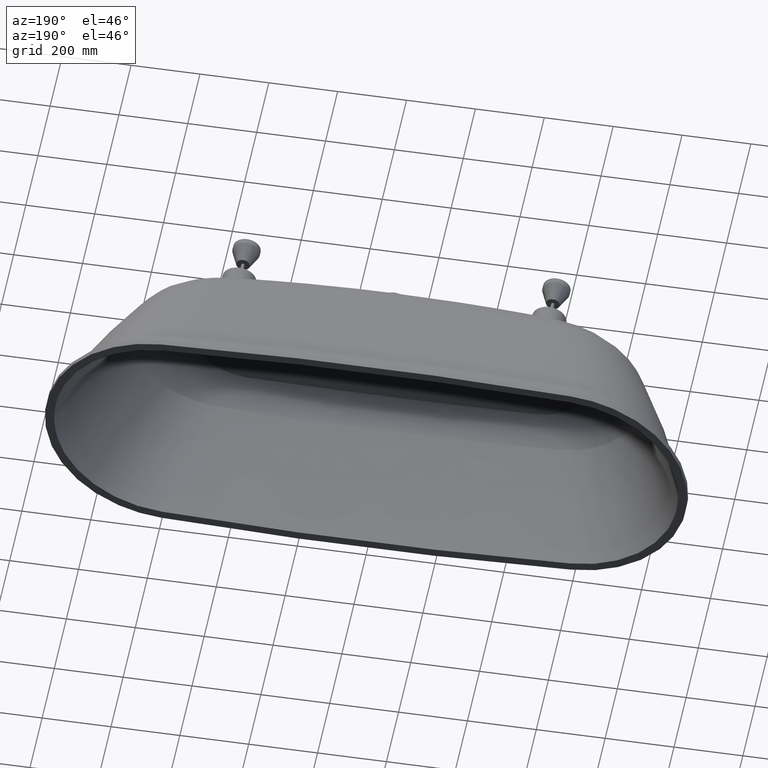
[diagram: clean part render]
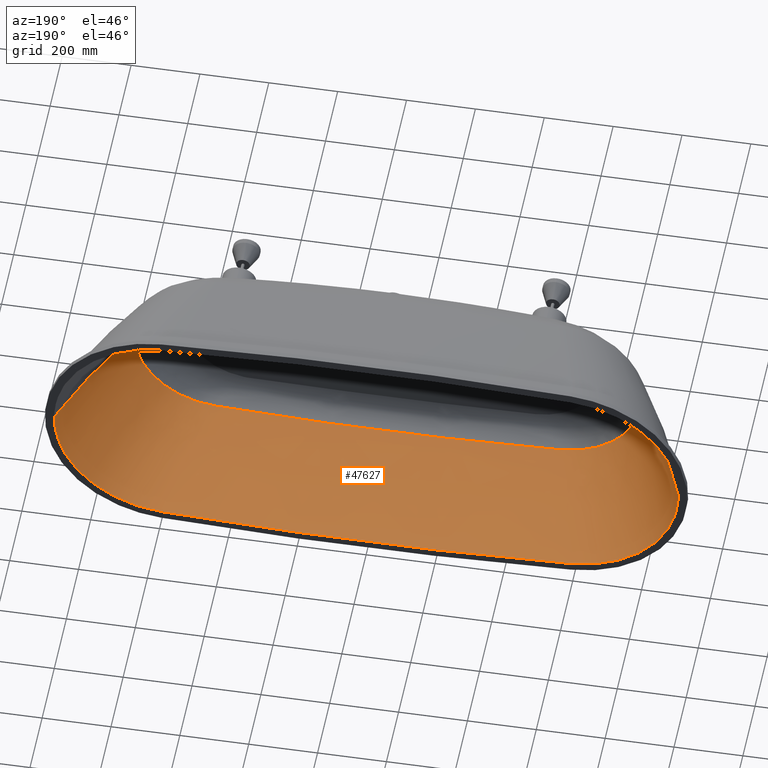
[diagram: same view with one face highlighted and labeled with its STEP entity id]
A machine part, auxiliary view. The second image highlights one B-rep face of the part: STEP entity #47627.
In plain terms, the highlighted face is a freeform B-spline surface patch.
Its self-contained STEP definition (entity closure, byte-faithful):
#20 = CARTESIAN_POINT ( 'NONE',  ( -545.7405642311770200, -364.8273226351349200, 243.9899501396624300 ) ) ;
#66 = VERTEX_POINT ( 'NONE', #52533 ) ;
#172 = CARTESIAN_POINT ( 'NONE',  ( 252.5959418400815100, -362.5000000000014800, -260.1793184558901000 ) ) ;
#213 = CARTESIAN_POINT ( 'NONE',  ( -769.5987359796132500, 3.792234427660666100, 273.2140951459784900 ) ) ;
#279 = ORIENTED_EDGE ( 'NONE', *, *, #46605, .T. ) ;
#357 = CARTESIAN_POINT ( 'NONE',  ( 377.5673822430424000, -366.0135138175324400, -254.7984177225406500 ) ) ;
#397 = CARTESIAN_POINT ( 'NONE',  ( -777.2854889343748300, -125.3275069479313500, 213.2114908090835900 ) ) ;
#464 = CARTESIAN_POINT ( 'NONE',  ( -861.7628363525688000, -125.6263020328484700, -0.06618885196532450800 ) ) ;
#550 = CARTESIAN_POINT ( 'NONE',  ( 614.0548598489934900, 1.888220301496475100, -330.7716499936227000 ) ) ;
#595 = CARTESIAN_POINT ( 'NONE',  ( -698.9112486127705800, -363.6574207787278400, 135.4936209471444800 ) ) ;
#667 = AXIS2_PLACEMENT_3D ( 'NONE', #3315, #3133, #3019 ) ;
#750 = CARTESIAN_POINT ( 'NONE',  ( 591.7620106077470200, -246.1016096965364300, -274.3374835992117900 ) ) ;
#791 = CARTESIAN_POINT ( 'NONE',  ( -902.5466941139742400, 5.707627340779002800, 73.69017368138075600 ) ) ;
#940 = CARTESIAN_POINT ( 'NONE',  ( 594.1313090638224100, -364.8241620115857100, -226.8962657453754200 ) ) ;
#980 = CARTESIAN_POINT ( 'NONE',  ( -906.4985065663389600, 0.0000000000000000000, 31.57934374214700700 ) ) ;
#1127 = CARTESIAN_POINT ( 'NONE',  ( 817.8034066343069500, 3.796448708745115800, -231.7225577898565200 ) ) ;
#1166 = CARTESIAN_POINT ( 'NONE',  ( -737.7500000000017100, -362.5000000000001100, 7.951770358727261900 ) ) ;
#1230 = CARTESIAN_POINT ( 'NONE',  ( 735.7337059224020100, -365.9671354035167500, 1.205360813764933000E-008 ) ) ;
#1323 = CARTESIAN_POINT ( 'NONE',  ( 814.2828728701213100, -125.4468475847171600, -166.3377127476424300 ) ) ;
#1366 = CARTESIAN_POINT ( 'NONE',  ( -735.7337059224020100, -365.9671354035167500, -7.889581171745233800 ) ) ;
#1428 = CARTESIAN_POINT ( 'NONE',  ( 907.1903478914272200, 1.902866835588757900, 31.61819622367425400 ) ) ;
#1513 = CARTESIAN_POINT ( 'NONE',  ( 720.8804681889281500, -363.6564985152913300, -92.54333873484344500 ) ) ;
#1552 = CARTESIAN_POINT ( 'NONE',  ( -901.2201844122888600, 1.902528177325404800, -73.29305380371151600 ) ) ;
#1608 = CARTESIAN_POINT ( 'NONE',  ( 798.9926231551227100, -246.9039885576472700, 61.41468516806264000 ) ) ;
#1699 = CARTESIAN_POINT ( 'NONE',  ( 908.5831007753131400, 5.708594216565803200, -31.56849245828816200 ) ) ;
#1739 = CARTESIAN_POINT ( 'NONE',  ( -786.5042076668370300, -246.8501484707794600, -103.5166729712534600 ) ) ;
#1801 = CARTESIAN_POINT ( 'NONE',  ( 719.9932183863769500, -364.8129376577460300, 93.11490423313115600 ) ) ;
#1893 = CARTESIAN_POINT ( 'NONE',  ( 907.5000000000009100, 0.0000000000000000000, -10.46794755184833600 ) ) ;
#1931 = CARTESIAN_POINT ( 'NONE',  ( -698.9300266465859300, -364.8149764216904000, -134.2654220051047400 ) ) ;
#1993 = CARTESIAN_POINT ( 'NONE',  ( 817.8212771255864500, 3.796793990620552300, 231.6879354330060600 ) ) ;
#2082 = CARTESIAN_POINT ( 'NONE',  ( 737.7500000000017100, -362.5000000000000600, 1.170253217247507700E-008 ) ) ;
#2126 = CARTESIAN_POINT ( 'NONE',  ( -769.4456196247100500, 3.791711602589089100, -273.3334842714579600 ) ) ;
#2185 = CARTESIAN_POINT ( 'NONE',  ( 732.4946403065771400, -125.1770013740332800, 252.0126319286869400 ) ) ;
#2316 = CARTESIAN_POINT ( 'NONE',  ( -682.0946035242182000, -124.9828793712685800, -281.4188656578572800 ) ) ;
#2373 = CARTESIAN_POINT ( 'NONE',  ( 591.9731470876032500, -363.6618344905131200, 228.4385647022626500 ) ) ;
#2459 = B_SPLINE_CURVE_WITH_KNOTS ( 'NONE', 3,
 ( #24885, #464, #13544, #43728 ),
 .UNSPECIFIED., .F., .F.,
 ( 4, 4 ),
 ( 6.470518565393490500E-016, 1.000000000000000200 ),
 .UNSPECIFIED. ) ;
#2498 = CARTESIAN_POINT ( 'NONE',  ( -549.4384039179160500, -363.6639839030341900, -243.4575125852078100 ) ) ;
#2559 = CARTESIAN_POINT ( 'NONE',  ( 614.9748935059551500, 5.666327330022066500, 331.4528187008794500 ) ) ;
#2681 = CARTESIAN_POINT ( 'NONE',  ( -543.6505338809953400, 5.653797838021978900, -335.2562204137245200 ) ) ;
#2744 = CARTESIAN_POINT ( 'NONE',  ( 542.8538690256342500, 0.0000000000000000000, 334.2418095831778300 ) ) ;
#2863 = CARTESIAN_POINT ( 'NONE',  ( -442.5781443874225800, 0.0000000000000000000, -338.9469566220201400 ) ) ;
#2931 = CARTESIAN_POINT ( 'NONE',  ( 375.2497867605102300, -362.5000000000000000, 254.3404090185526100 ) ) ;
#3019 = DIRECTION ( 'NONE',  ( 0.0000000000000000000, 0.0000000000000000000, 1.000000000000000000 ) ) ;
#3119 = CARTESIAN_POINT ( 'NONE',  ( 249.9691932280436500, -366.0250400677528000, 256.3728771078679600 ) ) ;
#3133 = DIRECTION ( 'NONE',  ( 0.0000000000000000000, 1.000000000000000000, 0.0000000000000000000 ) ) ;
#3302 = CARTESIAN_POINT ( 'NONE',  ( 49.51172548484672800, 1.866907548546762800, 347.7748855299022400 ) ) ;
#3315 = CARTESIAN_POINT ( 'NONE',  ( 575.5000000000001100, 0.0000000000000000000, -4.718447854656915300E-013 ) ) ;
#3475 = CARTESIAN_POINT ( 'NONE',  ( -44.15506443769547200, -244.5787338963872900, 300.0107932993432200 ) ) ;
#3651 = CARTESIAN_POINT ( 'NONE',  ( -124.7910275459623100, -364.8566269476256100, 258.6217377585282400 ) ) ;
#3692 = ORIENTED_EDGE ( 'NONE', *, *, #12323, .F. ) ;
#3794 = CARTESIAN_POINT ( 'NONE',  ( -252.5959418400789500, -362.4999999999995500, -260.1793184558893000 ) ) ;
#3831 = CARTESIAN_POINT ( 'NONE',  ( -443.5055162905251800, 3.760494775833777700, 339.5750827782146600 ) ) ;
#3972 = CARTESIAN_POINT ( 'NONE',  ( -125.7376757483455200, -366.0382197288694800, -261.6447724852573100 ) ) ;
#4012 = CARTESIAN_POINT ( 'NONE',  ( -519.8677471902312800, -124.4641373948079600, 312.0520804942331700 ) ) ;
#4155 = CARTESIAN_POINT ( 'NONE',  ( 49.51015191499539700, 1.865211104856035600, -347.7574157891260100 ) ) ;
#4196 = CARTESIAN_POINT ( 'NONE',  ( -513.8091027799654300, -363.6649431663275900, 248.8220988379932200 ) ) ;
#4335 = CARTESIAN_POINT ( 'NONE',  ( 133.6485854359668500, -244.5593423710228600, -301.3237076417704000 ) ) ;
#4371 = CARTESIAN_POINT ( 'NONE',  ( -715.2405904868442100, 5.680619615752654300, 305.0161712154953200 ) ) ;
#4518 = CARTESIAN_POINT ( 'NONE',  ( 252.2766852087535800, -364.8518452309117500, -259.4419518212344500 ) ) ;
#4559 = CARTESIAN_POINT ( 'NONE',  ( -768.5077205281853600, 0.0000000000000000000, 272.5906835375463400 ) ) ;
#4704 = CARTESIAN_POINT ( 'NONE',  ( 543.3214286627830900, 3.769198558681326400, -334.9215091667528600 ) ) ;
#4747 = CARTESIAN_POINT ( 'NONE',  ( -670.1482830463878600, -362.4999999999991500, 173.1700186140217600 ) ) ;
#4900 = CARTESIAN_POINT ( 'NONE',  ( 588.3124636918197400, -124.6556666174810000, -307.5000897380504100 ) ) ;
#4943 = CARTESIAN_POINT ( 'NONE',  ( -697.6699688054516200, -365.9722623361822700, 135.1745348101333400 ) ) ;
#5099 = CARTESIAN_POINT ( 'NONE',  ( 549.4384039179103600, -363.6639839030338500, -243.4575125852062700 ) ) ;
#5144 = CARTESIAN_POINT ( 'NONE',  ( -901.1751230456602600, 1.902542446926334300, 73.51011375317098400 ) ) ;
#5295 = CARTESIAN_POINT ( 'NONE',  ( 769.9805960857410100, 5.687567403883640800, -273.6532122925096900 ) ) ;
#5336 = CARTESIAN_POINT ( 'NONE',  ( -804.1025456442397400, -246.9251556237442500, 26.43199817808306700 ) ) ;
#5491 = CARTESIAN_POINT ( 'NONE',  ( 816.6241130015146200, 0.0000000000000000000, -231.1651056250781000 ) ) ;
#5533 = CARTESIAN_POINT ( 'NONE',  ( -736.4058039482686100, -364.8114236023445800, 7.934672611712412200 ) ) ;
#5596 = CARTESIAN_POINT ( 'NONE',  ( 908.8856061167725800, 3.805845981885129800, 10.54233122768478600 ) ) ;
#5684 = CARTESIAN_POINT ( 'NONE',  ( 700.1677443202993300, -362.5000000000001100, -134.5906900189153200 ) ) ;
#5725 = CARTESIAN_POINT ( 'NONE',  ( -907.8912529066250300, 3.805729477710537300, -31.52964991429210100 ) ) ;
#5787 = CARTESIAN_POINT ( 'NONE',  ( 860.8248415262457900, -125.6225948246728300, 29.01439833793668300 ) ) ;
#5881 = CARTESIAN_POINT ( 'NONE',  ( 719.5809881992665900, -365.9694955458757600, -92.32604498758777800 ) ) ;
#5922 = CARTESIAN_POINT ( 'NONE',  ( -855.2678610716519600, -125.6002374379101000, -67.21482868221815500 ) ) ;
#5952 = CARTESIAN_POINT ( 'NONE',  ( 737.7500000000017100, -362.5000000000000600, 1.170240971198561500E-008 ) ) ;
#5981 = CARTESIAN_POINT ( 'NONE',  ( 731.8077867554912900, -363.6559601144244900, 55.17660406170578800 ) ) ;
#6076 = CARTESIAN_POINT ( 'NONE',  ( 907.1994050379355500, 1.902864738855267700, -31.49080737029626300 ) ) ;
#6117 = CARTESIAN_POINT ( 'NONE',  ( -720.8804681889245100, -363.6564985152923600, -92.54333873484259200 ) ) ;
#6177 = CARTESIAN_POINT ( 'NONE',  ( 858.0782442044655900, 5.700911866784414500, 181.7784847907435600 ) ) ;
#6269 = CARTESIAN_POINT ( 'NONE',  ( 804.9598025866572500, -246.9288198827744900, -8.766055559736363600 ) ) ;
#6306 = CARTESIAN_POINT ( 'NONE',  ( -818.3930534506985200, 5.694673063117656800, -232.0012838722454400 ) ) ;
#6364 = CARTESIAN_POINT ( 'NONE',  ( 816.6293555748729900, 0.0000000000000000000, 231.1446507576487500 ) ) ;
#6452 = CARTESIAN_POINT ( 'NONE',  ( 736.4058039482686100, -364.8114236023445200, 1.193658281592457900E-008 ) ) ;
#6494 = CARTESIAN_POINT ( 'NONE',  ( -768.3756667026490300, 0.0000000000000000000, -272.6940282293533100 ) ) ;
#6551 = CARTESIAN_POINT ( 'NONE',  ( 634.0786998654837100, -362.5000000000007400, 204.5783176200609100 ) ) ;
#6676 = CARTESIAN_POINT ( 'NONE',  ( -595.0786411286161400, -362.4999999999996000, -227.4637751212336800 ) ) ;
#6706 = CARTESIAN_POINT ( 'NONE',  ( 907.5000000000009100, 0.0000000000000000000, 4.800847219765813600E-013 ) ) ;
#6736 = CARTESIAN_POINT ( 'NONE',  ( 591.0072454291346300, -365.9855034715409400, 227.8795603573559000 ) ) ;
#6862 = CARTESIAN_POINT ( 'NONE',  ( -548.6003126963352100, -365.9919517091034300, -242.8460280106730500 ) ) ;
#6924 = CARTESIAN_POINT ( 'NONE',  ( 614.1690118085663200, 1.888775776674022300, 330.7637833366814000 ) ) ;
#7042 = CARTESIAN_POINT ( 'NONE',  ( -542.9923234445708400, 1.884599279340659600, -334.5867979197813000 ) ) ;
#7105 = CARTESIAN_POINT ( 'NONE',  ( 491.2246000062022500, -245.7801286556225800, 284.3905426411885700 ) ) ;
#7230 = CARTESIAN_POINT ( 'NONE',  ( -403.7057718020558900, -245.3828727488798100, -290.3972747921491800 ) ) ;
#7295 = CARTESIAN_POINT ( 'NONE',  ( 374.7197752629204500, -364.8410162511410100, 253.6385249068734400 ) ) ;
#7485 = CARTESIAN_POINT ( 'NONE',  ( 148.0893021932227200, 3.736571134602434600, 347.3957350110802600 ) ) ;
#7661 = CARTESIAN_POINT ( 'NONE',  ( 46.81326244909838900, -123.2486510143257400, 329.3527324666203500 ) ) ;
#7839 = CARTESIAN_POINT ( 'NONE',  ( -41.47028444617832600, -363.6792126610360500, 259.4328155890582400 ) ) ;
#8019 = CARTESIAN_POINT ( 'NONE',  ( -295.6261342362893700, 5.620029151760455500, 344.7746353822539000 ) ) ;
#8161 = CARTESIAN_POINT ( 'NONE',  ( -252.2766852087509100, -364.8518452309098200, -259.4419518212337200 ) ) ;
#8198 = CARTESIAN_POINT ( 'NONE',  ( -442.9436270459589800, 0.0000000000000000000, 338.9320837479357900 ) ) ;
#8200 = CARTESIAN_POINT ( 'NONE',  ( 4.687092838786211300E-012, 0.0000000000000000000, 10676.12903225819500 ) ) ;
#8341 = CARTESIAN_POINT ( 'NONE',  ( -49.54884336947962000, 3.730422209712071200, -348.0148315782501000 ) ) ;
#8380 = CARTESIAN_POINT ( 'NONE',  ( -457.2613799485139300, -362.5000000000000000, 251.4333525027198000 ) ) ;
#8521 = CARTESIAN_POINT ( 'NONE',  ( 46.91714566582862700, -123.1366559685257400, -330.5060418449618900 ) ) ;
#8528 = CARTESIAN_POINT ( 'NONE',  ( 804.9598025866572500, -246.9288198827744900, -1.421046010157646800E-025 ) ) ;
#8563 = CARTESIAN_POINT ( 'NONE',  ( -513.0163198158610400, -365.9948294989828800, 248.1941509353760000 ) ) ;
#8706 = CARTESIAN_POINT ( 'NONE',  ( 125.8912856451941500, -363.6794065762890700, -262.4152372455777100 ) ) ;
#8712 = CARTESIAN_POINT ( 'NONE',  ( 861.7628436897503000, -125.6263020632071300, 0.0000000000000000000 ) ) ;
#8749 = CARTESIAN_POINT ( 'NONE',  ( -714.2585268502825800, 1.893539871917551600, 304.3432892982288000 ) ) ;
#8897 = CARTESIAN_POINT ( 'NONE',  ( 443.3676618831021900, 5.637800133552519600, -339.8909704668387200 ) ) ;
#8940 = CARTESIAN_POINT ( 'NONE',  ( -687.5067767874913900, -246.4847281167440700, 229.3191421933815400 ) ) ;
#9088 = CARTESIAN_POINT ( 'NONE',  ( 542.6632182263583700, 0.0000000000000000000, -334.2520866728096400 ) ) ;
#9128 = CARTESIAN_POINT ( 'NONE',  ( -668.9859213619702100, -364.8173302236163000, 172.7559886526132100 ) ) ;
#9281 = CARTESIAN_POINT ( 'NONE',  ( 517.7431283885589400, -362.5000000000000000, -248.7300754730870000 ) ) ;
#9322 = CARTESIAN_POINT ( 'NONE',  ( -886.8398430852539600, 3.803525667842686500, 124.7196029957767500 ) ) ;
#9473 = CARTESIAN_POINT ( 'NONE',  ( 548.6003126963295200, -365.9919517091030900, -242.8460280106715500 ) ) ;
#9519 = CARTESIAN_POINT ( 'NONE',  ( -855.2154609149961300, -125.6011794819156800, 67.47652668285995500 ) ) ;
#9558 = CIRCLE ( 'NONE', #43959, 11023.62903225819700 ) ;
#9664 = CARTESIAN_POINT ( 'NONE',  ( 768.9106431636797700, 1.895855801294547000, -273.0137562504050400 ) ) ;
#9703 = CARTESIAN_POINT ( 'NONE',  ( -736.3185862119320300, -363.6557484437626600, 23.80671227355280500 ) ) ;
#9767 = CARTESIAN_POINT ( 'NONE',  ( 909.5784091751586400, 5.708768972827694900, 7.526247393219024400E-014 ) ) ;
#9860 = CARTESIAN_POINT ( 'NONE',  ( 729.0828907042129000, -246.6217621453447200, -192.9727315880301400 ) ) ;
#9898 = CARTESIAN_POINT ( 'NONE',  ( -909.5784091751586400, 5.708768972827704700, -10.50661663642756100 ) ) ;
#9958 = CARTESIAN_POINT ( 'NONE',  ( 907.5000000000008000, 0.0000000000000000000, 10.51643243435973200 ) ) ;
#10051 = CARTESIAN_POINT ( 'NONE',  ( 698.9300266465808100, -364.8149764216898300, -134.2654220051046000 ) ) ;
#10092 = CARTESIAN_POINT ( 'NONE',  ( -906.5075571692473200, 0.0000000000000000000, -31.45196482630020200 ) ) ;
#10093 = EDGE_CURVE ( 'NONE', #36840, #42116, #51898, .T. ) ;
#10157 = CARTESIAN_POINT ( 'NONE',  ( 736.9897145231420800, -362.5000000000004000, 23.83270520330107400 ) ) ;
#10250 = CARTESIAN_POINT ( 'NONE',  ( 901.9058604409414100, 3.805056354650818900, -73.38374983297663300 ) ) ;
#10294 = CARTESIAN_POINT ( 'NONE',  ( -732.5366880606955000, -362.4999999999997200, -54.89279050666032600 ) ) ;
#10353 = CARTESIAN_POINT ( 'NONE',  ( 730.4773939554985400, -365.9678803432715300, 55.05307770316407100 ) ) ;
#10445 = CARTESIAN_POINT ( 'NONE',  ( 860.8334601367477000, -125.6224564034776300, -28.88767547346557800 ) ) ;
#10483 = CARTESIAN_POINT ( 'NONE',  ( -719.5809881992627200, -365.9694955458767800, -92.32604498758694000 ) ) ;
#10541 = CARTESIAN_POINT ( 'NONE',  ( 856.8012251606934300, 1.900303955594804700, 181.3436801742854500 ) ) ;
#10635 = CARTESIAN_POINT ( 'NONE',  ( 737.0779019741351000, -363.6557118011722900, -7.906600091900221700 ) ) ;
#10672 = CARTESIAN_POINT ( 'NONE',  ( -817.2137598179060700, 1.898224354372552300, -231.4438317074670100 ) ) ;
#10732 = CARTESIAN_POINT ( 'NONE',  ( 728.2663672672728100, -246.6334888191435700, 193.8715166844491500 ) ) ;
#10789 = DIRECTION ( 'NONE',  ( 0.0000000000000000000, 0.0000000000000000000, 1.000000000000000000 ) ) ;
#10863 = CARTESIAN_POINT ( 'NONE',  ( -688.7478595091195100, -246.4669762753848100, -228.3868906656160800 ) ) ;
#10920 = CARTESIAN_POINT ( 'NONE',  ( 633.0101383270437100, -364.8203054376659200, 204.0835011285944600 ) ) ;
#10973 = DIRECTION ( 'NONE',  ( 0.0000000000000000000, 1.000000000000000000, 0.0000000000000000000 ) ) ;
#11049 = CARTESIAN_POINT ( 'NONE',  ( -594.1313090638109300, -364.8241620115847500, -226.8962657453740200 ) ) ;
#11106 = CARTESIAN_POINT ( 'NONE',  ( 655.4838867999595800, 3.781480460669028400, 325.1231030982307900 ) ) ;
#11153 = CARTESIAN_POINT ( 'NONE',  ( 0.0000000000000000000, -362.5000000000000000, 8886.624777580067500 ) ) ;
#11233 = CARTESIAN_POINT ( 'NONE',  ( -614.4389741370610000, 3.776440602992941800, -331.1188957878836200 ) ) ;
#11292 = CARTESIAN_POINT ( 'NONE',  ( 587.1649057983650000, -124.6923377243914400, 307.6750544576530600 ) ) ;
#11412 = CARTESIAN_POINT ( 'NONE',  ( -520.9365000404371800, -124.4166156284030400, -312.1552722372552500 ) ) ;
#11476 = CARTESIAN_POINT ( 'NONE',  ( 456.9217477479344300, -363.6671987134437800, 251.1037806013351000 ) ) ;
#11603 = CARTESIAN_POINT ( 'NONE',  ( -378.0749237878754900, -363.6711712725115100, -255.4896576656402400 ) ) ;
#11665 = CARTESIAN_POINT ( 'NONE',  ( 295.6261342362933500, 5.620029151760454600, 344.7746353822536800 ) ) ;
#11853 = CARTESIAN_POINT ( 'NONE',  ( 147.8704361157375000, 0.0000000000000000000, 346.8356017334055000 ) ) ;
#12041 = CARTESIAN_POINT ( 'NONE',  ( 41.49686642629177400, -362.4999999999999400, 259.8345777446056100 ) ) ;
#12213 = CARTESIAN_POINT ( 'NONE',  ( -41.41712048595027100, -366.0376379831082500, 258.6292912779634900 ) ) ;
#12323 = EDGE_CURVE ( 'NONE', #42116, #41685, #50181, .T. ) ;
#12391 = CARTESIAN_POINT ( 'NONE',  ( -295.2347931117392900, 1.873343050586818300, 344.1779643915327300 ) ) ;
#12536 = CARTESIAN_POINT ( 'NONE',  ( -148.0919881446284300, 5.599994833653939400, -347.6261247729065600 ) ) ;
#12569 = CARTESIAN_POINT ( 'NONE',  ( -401.7503616400060200, -245.4491874429484100, 289.4346146025085900 ) ) ;
#12571 = DIRECTION ( 'NONE',  ( 0.0000000000000000000, 0.0000000000000000000, -1.000000000000000000 ) ) ;
#12713 = CARTESIAN_POINT ( 'NONE',  ( -49.47146046050181000, 0.0000000000000000000, -347.5000000000019300 ) ) ;
#12748 = CARTESIAN_POINT ( 'NONE',  ( -456.5821155473601000, -364.8343974268875600, 250.7742086999504900 ) ) ;
#12896 = CARTESIAN_POINT ( 'NONE',  ( 41.80851607647900200, -362.5000000000000000, -263.3752224199330400 ) ) ;
#12939 = CARTESIAN_POINT ( 'NONE',  ( -655.4838867999649200, 3.781480460669017300, 325.1231030982310700 ) ) ;
#13077 = CARTESIAN_POINT ( 'NONE',  ( 125.7376757483471600, -366.0382197288686300, -261.6447724852570800 ) ) ;
#13115 = CARTESIAN_POINT ( 'NONE',  ( -681.3507804200055500, -125.0068515912006400, 281.7958425885078100 ) ) ;
#13256 = CARTESIAN_POINT ( 'NONE',  ( 442.8413168859833600, 1.879266711184173200, -339.2616279036259400 ) ) ;
#13295 = CARTESIAN_POINT ( 'NONE',  ( -633.5444190962675700, -363.6601527188327600, 204.3309093743264100 ) ) ;
#13439 = CARTESIAN_POINT ( 'NONE',  ( 493.5206655717049100, -245.7313581634087400, -284.6348152018522900 ) ) ;
#13478 = CARTESIAN_POINT ( 'NONE',  ( -858.0782442044680900, 5.700911866784411900, 181.7784847907433600 ) ) ;
#13544 = CARTESIAN_POINT ( 'NONE',  ( -804.9597958822913600, -246.9288198527229400, -0.06033202953730592400 ) ) ;
#13632 = CARTESIAN_POINT ( 'NONE',  ( 516.9739401414190100, -364.8306401324514400, -248.1001985735855200 ) ) ;
#13672 = CARTESIAN_POINT ( 'NONE',  ( -885.4996371751589100, 0.0000000000000000000, 124.4164810830427100 ) ) ;
#13820 = CARTESIAN_POINT ( 'NONE',  ( 714.4905138603921800, 3.786353505974043600, -304.8012339277669300 ) ) ;
#13860 = CARTESIAN_POINT ( 'NONE',  ( -732.4729831554901700, -362.5000000000002300, 55.23836724097580500 ) ) ;
#14009 = CARTESIAN_POINT ( 'NONE',  ( 733.0578347094330000, -125.1597435604796500, -251.5863695684514900 ) ) ;
#14050 = CARTESIAN_POINT ( 'NONE',  ( -734.9763295895101000, -365.9672453312877000, 23.75472641405716000 ) ) ;
#14206 = CARTESIAN_POINT ( 'NONE',  ( 670.7813076126113900, -363.6587823785461100, -171.6219038234114000 ) ) ;
#14246 = CARTESIAN_POINT ( 'NONE',  ( -908.1928030583867400, 1.902922990942568200, -10.48083724670818900 ) ) ;
#14312 = CARTESIAN_POINT ( 'NONE',  ( 804.9598025866572500, -246.9288198827744900, 8.806657709469787300 ) ) ;
#14402 = CARTESIAN_POINT ( 'NONE',  ( 887.5984116098060200, 5.705157452956758100, -124.6608782274255300 ) ) ;
#14440 = CARTESIAN_POINT ( 'NONE',  ( -804.1105713543146300, -246.9250130860883700, -26.30614406241273100 ) ) ;
#14498 = CARTESIAN_POINT ( 'NONE',  ( 735.6474579007201600, -364.8114968875254400, 23.78071934380542600 ) ) ;
#14588 = CARTESIAN_POINT ( 'NONE',  ( 900.5345083836385800, 0.0000000000000000000, -73.20235777444411000 ) ) ;
#14626 = CARTESIAN_POINT ( 'NONE',  ( -731.2063982213600200, -364.8119396268300000, -54.76843754574851200 ) ) ;
#14689 = CARTESIAN_POINT ( 'NONE',  ( 886.8398430852557800, 3.803525667842676300, 124.7196029957777200 ) ) ;
#14779 = CARTESIAN_POINT ( 'NONE',  ( 736.9969960090214700, -362.5000000000002800, -23.70790219954130200 ) ) ;
#14815 = CARTESIAN_POINT ( 'NONE',  ( -857.5150727404319500, 3.800409412514898800, -181.4614496937801100 ) ) ;
#14874 = CARTESIAN_POINT ( 'NONE',  ( 814.0098852570831700, -125.4533997822015400, 166.7739114419723300 ) ) ;
#14958 = CARTESIAN_POINT ( 'NONE',  ( 735.7337059224020100, -365.9671354035167500, -7.889581171745049900 ) ) ;
#14995 = CARTESIAN_POINT ( 'NONE',  ( -777.6970784237705600, -125.3161096172494200, -212.7642942492174100 ) ) ;
#15051 = CARTESIAN_POINT ( 'NONE',  ( 669.5671022041818800, -363.6586651118086600, 172.9630036333177000 ) ) ;
#15130 = CARTESIAN_POINT ( 'NONE',  ( 737.7500000000017100, -362.5000000000000600, 1.170240971198561500E-008 ) ) ;
#15178 = CARTESIAN_POINT ( 'NONE',  ( -635.4536798690541000, -363.6603302372468500, -202.9078198126237300 ) ) ;
#15233 = CARTESIAN_POINT ( 'NONE',  ( 715.2405904868441000, 5.680619615752658700, 305.0161712154975900 ) ) ;
#15357 = CARTESIAN_POINT ( 'NONE',  ( -655.6481125540725500, 5.670794746240788200, -325.5310762363149600 ) ) ;
#15412 = CARTESIAN_POINT ( 'NONE',  ( 654.6106092647513600, 0.0000000000000000000, 324.4304010806875500 ) ) ;
#15534 = CARTESIAN_POINT ( 'NONE',  ( -613.6707455609265500, 0.0000000000000000000, -330.4244041993614500 ) ) ;
#15593 = CARTESIAN_POINT ( 'NONE',  ( 514.2054942620146700, -362.5000000000000600, 249.1360727893022600 ) ) ;
#15709 = CARTESIAN_POINT ( 'NONE',  ( -460.7545787448647700, -362.5000000000000000, -251.8579407520206800 ) ) ;
#15773 = CARTESIAN_POINT ( 'NONE',  ( 456.2424833467806000, -366.0015961403313400, 250.4446367985657700 ) ) ;
#15893 = CARTESIAN_POINT ( 'NONE',  ( -377.5673822430402400, -366.0135138175339200, -254.7984177225410700 ) ) ;
#15955 = CARTESIAN_POINT ( 'NONE',  ( 295.2347931117431600, 1.873343050586818000, 344.1779643915325600 ) ) ;
#16131 = CARTESIAN_POINT ( 'NONE',  ( 132.9980336171151400, -244.6686526187017700, 299.0906361103734000 ) ) ;
#16307 = CARTESIAN_POINT ( 'NONE',  ( 41.44370246606369800, -364.8584253220721500, 259.0310534335108600 ) ) ;
#16481 = CARTESIAN_POINT ( 'NONE',  ( -148.0893021932158400, 3.736571134602431500, 347.3957350110799200 ) ) ;
#16655 = CARTESIAN_POINT ( 'NONE',  ( -282.1214326175856400, -123.6735070526733400, 324.1842522389295000 ) ) ;
#16799 = CARTESIAN_POINT ( 'NONE',  ( -147.8843858178434200, 1.866664944551312800, -347.0992930536108900 ) ) ;
#16835 = CARTESIAN_POINT ( 'NONE',  ( -374.9847810117179300, -363.6705081255703900, 253.9894669627132900 ) ) ;
#16977 = CARTESIAN_POINT ( 'NONE',  ( -44.36283087115356900, -244.4643333783579400, -302.3497277031459600 ) ) ;
#17013 = CARTESIAN_POINT ( 'NONE',  ( -614.9748935059578800, 5.666327330022054000, 331.4528187008792200 ) ) ;
#17148 = CARTESIAN_POINT ( 'NONE',  ( 41.75742978058551800, -364.8607133324327900, -262.5957323142687900 ) ) ;
#17188 = CARTESIAN_POINT ( 'NONE',  ( -654.6106092647567000, 0.0000000000000000000, 324.4304010806878300 ) ) ;
#17329 = CARTESIAN_POINT ( 'NONE',  ( 295.1153171867089800, 3.743992291504902400, -344.4574857753324300 ) ) ;
#17367 = CARTESIAN_POINT ( 'NONE',  ( -592.4560979168362600, -362.4999999999997200, 228.7180668747156700 ) ) ;
#17494 = EDGE_CURVE ( 'NONE', #54292, #48512, #36447, .T. ) ;
#17507 = CARTESIAN_POINT ( 'NONE',  ( 425.2041424146087800, -124.0645725761155800, -318.1731314794067800 ) ) ;
#17546 = CARTESIAN_POINT ( 'NONE',  ( -632.4758575578275700, -365.9804581564979500, 203.8360928828599900 ) ) ;
#17548 = CARTESIAN_POINT ( 'NONE',  ( 907.5000000000009100, 0.0000000000000000000, 4.800847219765813600E-013 ) ) ;
#17700 = CARTESIAN_POINT ( 'NONE',  ( 460.4269178765990200, -363.6676864183658600, -251.5301720075223700 ) ) ;
#17740 = CARTESIAN_POINT ( 'NONE',  ( -856.8012251606960500, 1.900303955594803800, 181.3436801742852300 ) ) ;
#17885 = CARTESIAN_POINT ( 'NONE',  ( 655.6481125540735800, 5.670794746240794400, -325.5310762363142800 ) ) ;
#17920 = CARTESIAN_POINT ( 'NONE',  ( -786.3131126567834600, -246.8531171126234700, 104.0445055680929200 ) ) ;
#18070 = CARTESIAN_POINT ( 'NONE',  ( 713.5379387309160400, 0.0000000000000000000, -304.1136945979244500 ) ) ;
#18112 = CARTESIAN_POINT ( 'NONE',  ( -731.1425903554975300, -364.8119202288472700, 55.11484088243408100 ) ) ;
#18261 = CARTESIAN_POINT ( 'NONE',  ( 635.9813450139972700, -362.5000000000006300, -203.1600878408690400 ) ) ;
#18298 = CARTESIAN_POINT ( 'NONE',  ( -908.8856061167726900, 3.805845981885136500, 10.54233122768474500 ) ) ;
#18359 = CARTESIAN_POINT ( 'NONE',  ( 861.7628436897503000, -125.6263020632071300, 0.0000000000000000000 ) ) ;
#18444 = CARTESIAN_POINT ( 'NONE',  ( 669.6268208187182200, -365.9763471356392300, -171.1991151548051000 ) ) ;
#18480 = CARTESIAN_POINT ( 'NONE',  ( -861.7628436897509800, -125.6263020632073500, -9.617001555792491300 ) ) ;
#18537 = CARTESIAN_POINT ( 'NONE',  ( 737.0779019741351000, -363.6557118011723400, 7.943221485219961400 ) ) ;
#18627 = CARTESIAN_POINT ( 'NONE',  ( 886.2597733914107000, 1.901719150985586000, -124.3529896550912100 ) ) ;
#18667 = CARTESIAN_POINT ( 'NONE',  ( -736.3258602555693000, -363.6557498691390700, -23.68191978091270000 ) ) ;
#18723 = CARTESIAN_POINT ( 'NONE',  ( 902.5466941139739000, 5.707627340779010800, 73.69017368138141000 ) ) ;
#18813 = CARTESIAN_POINT ( 'NONE',  ( 799.0511800274700800, -246.9030186584869000, -61.11043855225079100 ) ) ;
#18853 = CARTESIAN_POINT ( 'NONE',  ( -887.5984116098044300, 5.705157452956772300, -124.6608782274255800 ) ) ;
#18916 = CARTESIAN_POINT ( 'NONE',  ( 885.4996371751606100, 0.0000000000000000000, 124.4164810830436500 ) ) ;
#19006 = CARTESIAN_POINT ( 'NONE',  ( 735.6547245021156400, -364.8114997382785400, -23.65593736228387200 ) ) ;
#19042 = CARTESIAN_POINT ( 'NONE',  ( -856.2438654194568200, 0.0000000000000000000, -181.0167486333643300 ) ) ;
#19105 = CARTESIAN_POINT ( 'NONE',  ( 699.5318885164269900, -362.5000000000003400, 135.6531640156520700 ) ) ;
#19192 = CARTESIAN_POINT ( 'NONE',  ( 908.8856061167726900, 3.805845981885129800, 7.417199070580600300E-014 ) ) ;
#19231 = CARTESIAN_POINT ( 'NONE',  ( -671.3585510095528000, -362.4999999999989800, -171.8332981577133600 ) ) ;
#19289 = CARTESIAN_POINT ( 'NONE',  ( 668.4047405197642300, -365.9759953354258100, 172.5489736719091500 ) ) ;
#19419 = CARTESIAN_POINT ( 'NONE',  ( -634.3983495791517300, -365.9809907117392000, -202.4032837561288100 ) ) ;
#19477 = CARTESIAN_POINT ( 'NONE',  ( 714.2585268502824600, 1.893539871917552700, 304.3432892982309000 ) ) ;
#19607 = CARTESIAN_POINT ( 'NONE',  ( -654.8107819598429800, 1.890264915413596000, -324.8283414927822700 ) ) ;
#19667 = CARTESIAN_POINT ( 'NONE',  ( 589.6362870614275400, -246.1338682432571300, 274.9131505752977800 ) ) ;
#19783 = CARTESIAN_POINT ( 'NONE',  ( -556.2025407455590800, -245.9679933774288800, -280.2239204481630300 ) ) ;
#19845 = CARTESIAN_POINT ( 'NONE',  ( 513.4127112979102800, -364.8298863326553500, 248.5081248866850400 ) ) ;
#19965 = CARTESIAN_POINT ( 'NONE',  ( -460.0992570083279200, -364.8353728367317800, -251.2024032630240500 ) ) ;
#20028 = CARTESIAN_POINT ( 'NONE',  ( 443.5055162905249500, 3.760494775833783900, 339.5750827782146600 ) ) ;
#20083 = FACE_OUTER_BOUND ( 'NONE', #24071, .T. ) ;
#20211 = CARTESIAN_POINT ( 'NONE',  ( 282.1214326175827400, -123.6735070526733300, 324.1842522389292800 ) ) ;
#20401 = CARTESIAN_POINT ( 'NONE',  ( 124.8714883897954900, -363.6783134738128600, 259.0184916639386200 ) ) ;
#20571 = CARTESIAN_POINT ( 'NONE',  ( -49.59225553351858900, 5.600722645640288100, 348.3246565897027800 ) ) ;
#20626 = ORIENTED_EDGE ( 'NONE', *, *, #10093, .F. ) ;
#20754 = CARTESIAN_POINT ( 'NONE',  ( -147.8704361157308800, 0.0000000000000000000, 346.8356017334051000 ) ) ;
#20892 = CARTESIAN_POINT ( 'NONE',  ( -295.1153171867063100, 3.743992291504879300, -344.4574857753314100 ) ) ;
#20904 = DIRECTION ( 'NONE',  ( 0.0000000000000000000, 0.0000000000000000000, 1.000000000000000000 ) ) ;
#20924 = CARTESIAN_POINT ( 'NONE',  ( -250.4718305994655300, -362.5000000000002800, 257.5065180530513100 ) ) ;
#20968 = DIRECTION ( 'NONE',  ( 0.0000000000000000000, 1.000000000000000000, 0.0000000000000000000 ) ) ;
#21013 = CARTESIAN_POINT ( 'NONE',  ( 487.7500000000000000, -362.5000000000000000, 0.0000000000000000000 ) ) ;
#21025 = AXIS2_PLACEMENT_3D ( 'NONE', #52457, #52339, #52268 ) ;
#21070 = CARTESIAN_POINT ( 'NONE',  ( -140.9278867949327600, -123.2326348944096100, -329.4458091198104100 ) ) ;
#21112 = CARTESIAN_POINT ( 'NONE',  ( -374.4547695141280300, -366.0115243767114100, 253.2875828510341300 ) ) ;
#21253 = CARTESIAN_POINT ( 'NONE',  ( -41.78297292853043400, -363.6803566662164300, -262.9854773671009400 ) ) ;
#21294 = CARTESIAN_POINT ( 'NONE',  ( -614.1690118085690500, 1.888775776674017600, 330.7637833366811700 ) ) ;
#21435 = CARTESIAN_POINT ( 'NONE',  ( 148.0919881446328400, 5.599994833653926000, -347.6261247729055400 ) ) ;
#21476 = CARTESIAN_POINT ( 'NONE',  ( -589.6362870614325400, -246.1338682432569000, 274.9131505752968100 ) ) ;
#21621 = CARTESIAN_POINT ( 'NONE',  ( 294.7487625157571600, 0.0000000000000000000, -343.8866533588550300 ) ) ;
#21662 = CARTESIAN_POINT ( 'NONE',  ( -591.4901962583676300, -364.8236689810275900, 228.1590625298090100 ) ) ;
#21808 = CARTESIAN_POINT ( 'NONE',  ( 378.3286945602952800, -362.4999999999988100, -255.8352776371893900 ) ) ;
#21848 = CARTESIAN_POINT ( 'NONE',  ( -817.8212771255853100, 3.796793990620537200, 231.6879354330040400 ) ) ;
#22000 = CARTESIAN_POINT ( 'NONE',  ( 459.7715961400622900, -366.0030592550977000, -250.8746345185257700 ) ) ;
#22043 = CARTESIAN_POINT ( 'NONE',  ( -814.0098852570868100, -125.4533997822014900, 166.7739114419715600 ) ) ;
#22188 = CARTESIAN_POINT ( 'NONE',  ( 654.8107819598438900, 1.890264915413598200, -324.8283414927815900 ) ) ;
#22233 = CARTESIAN_POINT ( 'NONE',  ( -720.6434134282396800, -363.6564688288733000, 93.22205718739610300 ) ) ;
#22381 = CARTESIAN_POINT ( 'NONE',  ( 642.4452443688809400, -246.2918994207445300, -255.8392439142162400 ) ) ;
#22422 = CARTESIAN_POINT ( 'NONE',  ( -908.5740305416051100, 5.708600506766277500, 31.69590118672726900 ) ) ;
#22575 = CARTESIAN_POINT ( 'NONE',  ( 634.9260147240949000, -364.8206604744929100, -202.6555517843741000 ) ) ;
#22617 = CARTESIAN_POINT ( 'NONE',  ( -907.5000000000009100, 0.0000000000000000000, 10.51643243435969300 ) ) ;
#22685 = CARTESIAN_POINT ( 'NONE',  ( 737.7500000000017100, -362.5000000000000600, 1.170253217247507700E-008 ) ) ;
#22773 = CARTESIAN_POINT ( 'NONE',  ( 857.5150727404264900, 3.800409412514897900, -181.4614496937790300 ) ) ;
#22816 = CARTESIAN_POINT ( 'NONE',  ( -737.7500000000017100, -362.5000000000000600, -7.915109551977991500 ) ) ;
#22878 = CARTESIAN_POINT ( 'NONE',  ( 735.7337059224020100, -365.9671354035168100, 7.926123738205115300 ) ) ;
#22968 = CARTESIAN_POINT ( 'NONE',  ( 841.4036506180787000, -125.5468275060174800, -114.0360217011289000 ) ) ;
#23007 = CARTESIAN_POINT ( 'NONE',  ( -734.9835887486635800, -365.9672496074173300, -23.62995494365527800 ) ) ;
#23071 = CARTESIAN_POINT ( 'NONE',  ( 901.1751230456596900, 1.902542446926337000, 73.51011375317163800 ) ) ;
#23161 = CARTESIAN_POINT ( 'NONE',  ( 731.8715431410261100, -363.6559698134159400, -54.83061402620442200 ) ) ;
#23200 = CARTESIAN_POINT ( 'NONE',  ( -886.2597733914091100, 1.901719150985590900, -124.3529896550912500 ) ) ;
#23262 = CARTESIAN_POINT ( 'NONE',  ( 786.3131126567865300, -246.8531171126224700, 104.0445055680927500 ) ) ;
#23355 = CARTESIAN_POINT ( 'NONE',  ( 909.5784091751586400, 5.708768972827694900, -10.50661663642739400 ) ) ;
#23394 = CARTESIAN_POINT ( 'NONE',  ( -762.0536280062325400, -246.7511789155146600, -150.8540907094515300 ) ) ;
#23453 = CARTESIAN_POINT ( 'NONE',  ( 698.2906087091080300, -364.8148415574547700, 135.3340778786409500 ) ) ;
#23545 = CARTESIAN_POINT ( 'NONE',  ( 907.5000000000009100, 0.0000000000000000000, 7.199102425303749400E-014 ) ) ;
#23581 = CARTESIAN_POINT ( 'NONE',  ( -670.2040642156597400, -364.8175647570921000, -171.4105094891070300 ) ) ;
#23640 = CARTESIAN_POINT ( 'NONE',  ( 769.5987359796081400, 3.792234427660679900, 273.2140951459782600 ) ) ;
#23736 = B_SPLINE_CURVE_WITH_KNOTS ( 'NONE', 3,
 ( #6706, #8712, #8528, #5952 ),
 .UNSPECIFIED., .F., .F.,
 ( 4, 4 ),
 ( -1.214306433183765000E-017, 1.000000000000000000 ),
 .UNSPECIFIED. ) ;
#23770 = CARTESIAN_POINT ( 'NONE',  ( -714.4905138603942300, 3.786353505974026800, -304.8012339277652200 ) ) ;
#23830 = CARTESIAN_POINT ( 'NONE',  ( 681.3507804200036200, -125.0068515912007300, 281.7958425885092900 ) ) ;
#23951 = CARTESIAN_POINT ( 'NONE',  ( -626.7528620375734400, -124.7906470064812200, -301.2805632358825400 ) ) ;
#24014 = CARTESIAN_POINT ( 'NONE',  ( 546.1709144550000000, -363.6636613175677400, 244.2931187713860200 ) ) ;
#24071 = EDGE_LOOP ( 'NONE', ( #34430, #279, #35837, #3692, #20626, #27751, #30433, #52700 ) ) ;
#24140 = CARTESIAN_POINT ( 'NONE',  ( -517.3585342649886300, -363.6653200662257200, -248.4151370233362600 ) ) ;
#24199 = CARTESIAN_POINT ( 'NONE',  ( 543.8984150879197200, 5.655957344280877500, 335.2501655950796400 ) ) ;
#24327 = CARTESIAN_POINT ( 'NONE',  ( -443.3676618831006000, 5.637800133552533000, -339.8909704668392900 ) ) ;
#24388 = CARTESIAN_POINT ( 'NONE',  ( 442.9436270459585800, 0.0000000000000000000, 338.9320837479357900 ) ) ;
#24572 = CARTESIAN_POINT ( 'NONE',  ( 250.4718305994641400, -362.4999999999998900, 257.5065180530510800 ) ) ;
#24756 = CARTESIAN_POINT ( 'NONE',  ( 124.7105667021257900, -366.0349404214388200, 258.2249838531182000 ) ) ;
#24885 = CARTESIAN_POINT ( 'NONE',  ( -907.4999921276647700, 0.0000000000000000000, -0.07204553827022447400 ) ) ;
#24931 = CARTESIAN_POINT ( 'NONE',  ( -49.51172548483781800, 1.866907548546762800, 347.7748855299022400 ) ) ;
#25102 = B_SPLINE_SURFACE_WITH_KNOTS ( 'NONE', 3, 3, ( 
 ( #9767, #39939, #48435, #44312, #18359, #48629, #22685, #52999, #27030, #1230 ),
 ( #31393, #5596, #35710, #9958, #40137, #14312, #44505, #18537, #48817, #22878 ),
 ( #53187, #27216, #1428, #31583, #5787, #35899, #10157, #40327, #14498, #44688 ),
 ( #18723, #49001, #23071, #53376, #27400, #1608, #31765, #5981, #36083, #10353 ),
 ( #40527, #14689, #44886, #18916, #49187, #23262, #53566, #27591, #1801, #31952 ),
 ( #6177, #36272, #10541, #40726, #14874, #45067, #19105, #49381, #23453, #53754 ),
 ( #27780, #1993, #32145, #6364, #36467, #10732, #40912, #15051, #45250, #19289 ),
 ( #49567, #23640, #53945, #27966, #2185, #32334, #6551, #36651, #10920, #41111 ),
 ( #15233, #45441, #19477, #49757, #23830, #54127, #28156, #2373, #32522, #6736 ),
 ( #36834, #11106, #41308, #15412, #45627, #19667, #49948, #24014, #54306, #28345 ),
 ( #2559, #32706, #6924, #37020, #11292, #41495, #15593, #45813, #19845, #50141 ),
 ( #24199, #54481, #28526, #2744, #32887, #7105, #37211, #11476, #41677, #15773 ),
 ( #45996, #20028, #50329, #24388, #54669, #28707, #2931, #33071, #7295, #37399 ),
 ( #11665, #41866, #15955, #46180, #20211, #50503, #24572, #54849, #28891, #3119 ),
 ( #33255, #7485, #37585, #11853, #42044, #16131, #46351, #20401, #50693, #24756 ),
 ( #55032, #29074, #3302, #33435, #7661, #37768, #12041, #42225, #16307, #46526 ),
 ( #20571, #50865, #24931, #55204, #29256, #3475, #33609, #7839, #37955, #12213 ),
 ( #42394, #16481, #46707, #20754, #51040, #25109, #55377, #29438, #3651, #33785 ),
 ( #8019, #38135, #12391, #42578, #16655, #46884, #20924, #51212, #25282, #55554 ),
 ( #29615, #3831, #33957, #8198, #38322, #12569, #42755, #16835, #47066, #21112 ),
 ( #51401, #25457, #55738, #29797, #4012, #34136, #8380, #38512, #12748, #42938 ),
 ( #17013, #47245, #21294, #51594, #25639, #55920, #29983, #4196, #34319, #8563 ),
 ( #38705, #12939, #43125, #17188, #47432, #21476, #51782, #25829, #20, #30173 ),
 ( #4371, #34506, #8749, #38893, #13115, #43312, #17367, #47610, #21662, #51969 ),
 ( #26012, #213, #30365, #4559, #34685, #8940, #39080, #13295, #43492, #17546 ),
 ( #47796, #21848, #52159, #26194, #397, #30560, #4747, #34874, #9128, #39278 ),
 ( #13478, #43671, #17740, #47991, #22043, #52341, #26387, #595, #30748, #4943 ),
 ( #35069, #9322, #39470, #13672, #43854, #17920, #48177, #22233, #52536, #26584 ),
 ( #791, #30943, #5144, #35263, #9519, #39674, #13860, #44055, #18112, #48369 ),
 ( #22422, #52737, #26767, #980, #31139, #5336, #35458, #9703, #39876, #14050 ),
 ( #44245, #18298, #48564, #22617, #52935, #26963, #1166, #31332, #5533, #35644 ),
 ( #9898, #40074, #14246, #44442, #18480, #48755, #22816, #53123, #27157, #1366 ),
 ( #31519, #5725, #35836, #10092, #40267, #14440, #44632, #18667, #48945, #23007 ),
 ( #53315, #27342, #1552, #31709, #5922, #36026, #10294, #40468, #14626, #44825 ),
 ( #18853, #49130, #23200, #53505, #27528, #1739, #31890, #6117, #36212, #10483 ),
 ( #40662, #14815, #45013, #19042, #49320, #23394, #53698, #27721, #1931, #32084 ),
 ( #6306, #36404, #10672, #40852, #14995, #45192, #19231, #49506, #23581, #53883 ),
 ( #27908, #2126, #32277, #6494, #36596, #10863, #41052, #15178, #45382, #19419 ),
 ( #49695, #23770, #54073, #28099, #2316, #32461, #6676, #36776, #11049, #41248 ),
 ( #15357, #45573, #19607, #49886, #23951, #54250, #28280, #2498, #32642, #6862 ),
 ( #36957, #11233, #41431, #15534, #45750, #19783, #50076, #24140, #54424, #28465 ),
 ( #2681, #32826, #7042, #37148, #11412, #41615, #15709, #45933, #19965, #50267 ),
 ( #24327, #54606, #28642, #2863, #33004, #7230, #37335, #11603, #41800, #15893 ),
 ( #46849, #20892, #51174, #25246, #55520, #29580, #3794, #33923, #8161, #38285 ),
 ( #12536, #42722, #16799, #47032, #21070, #51357, #25421, #55702, #29760, #3972 ),
 ( #34098, #8341, #38469, #12713, #42897, #16977, #47206, #21253, #51551, #25598 ),
 ( #55882, #29941, #4155, #34277, #8521, #38664, #12896, #43086, #17148, #47391 ),
 ( #21435, #51740, #25787, #56059, #30131, #4335, #34466, #8706, #38850, #13077 ),
 ( #43271, #17329, #47569, #21621, #51927, #25970, #172, #30326, #4518, #34648 ),
 ( #8897, #39038, #13256, #43454, #17507, #47759, #21808, #52118, #26155, #357 ),
 ( #30519, #4704, #34835, #9088, #39232, #13439, #43633, #17700, #47949, #22000 ),
 ( #52299, #26345, #550, #30707, #4900, #35026, #9281, #39428, #13632, #43813 ),
 ( #17885, #48136, #22188, #52493, #26540, #750, #30900, #5099, #35219, #9473 ),
 ( #39629, #13820, #44014, #18070, #48325, #22381, #52692, #26729, #940, #31102 ),
 ( #5295, #35416, #9664, #39832, #14009, #44207, #18261, #48522, #22575, #52896 ),
 ( #26922, #1127, #31294, #5491, #35605, #9860, #40033, #14206, #44397, #18444 ),
 ( #48717, #22773, #53085, #27116, #1323, #31480, #5684, #35799, #10051, #40228 ),
 ( #14402, #44593, #18627, #48905, #22968, #53276, #27304, #1513, #31671, #5881 ),
 ( #35987, #10250, #40426, #14588, #44786, #18813, #49088, #23161, #53468, #27491 ),
 ( #1699, #31853, #6076, #36174, #10445, #40620, #14779, #44977, #19006, #49282 ),
 ( #23355, #53661, #27683, #1893, #32044, #6269, #36362, #10635, #40814, #14958 ),
 ( #45154, #19192, #49469, #23545, #53844, #27870, #2082, #32238, #6452, #36557 ) ),
 .UNSPECIFIED., .T., .F., .F.,
 ( 4, 1, 1, 1, 1, 1, 1, 1, 1, 2, 1, 1, 1, 2, 1, 1, 1, 2, 1, 1, 1, 1, 1, 1, 1, 1, 2, 1, 1, 1, 1, 1, 1, 1, 1, 2, 1, 1, 1, 2, 1, 1, 1, 2, 1, 1, 1, 1, 1, 1, 1, 1, 4 ),
 ( 4, 3, 3, 4 ),
 ( 0.0000000000000000000, 0.006980111702730379700, 0.01396022340546075900, 0.02792044681092151900, 0.04188067021638228200, 0.05584089362184303800, 0.06980111702730376600, 0.08376134043276456400, 0.09772156383822532000, 0.1116817872436860800, 0.1462593479824551600, 0.1808369087212242400, 0.2154144694599932900, 0.2499920301987623700, 0.2845695909375317000, 0.3191471516763010300, 0.3537247124150703600, 0.3883022731538396900, 0.4022624965593003500, 0.4162227199647610100, 0.4301829433702217800, 0.4441431667756824400, 0.4581033901811431000, 0.4720636135866037600, 0.4860238369920644200, 0.4930039486947947500, 0.4999840603975250800, 0.5069319910447563900, 0.5138799216919877100, 0.5277757829864501100, 0.5416716442809126300, 0.5555675055753751500, 0.5694633668698376700, 0.5833592281643000800, 0.5972550894587627100, 0.6111509507532251200, 0.6458612206146096000, 0.6805714904759940800, 0.7152817603373784500, 0.7499920301987629300, 0.7847023000601471800, 0.8194125699215313300, 0.8541228397829155900, 0.8888331096442998500, 0.9027289709387623700, 0.9166248322332248800, 0.9305206935276872900, 0.9444165548221499200, 0.9583124161166125500, 0.9722082774110749600, 0.9861041387055374800, 0.9930520693527686800, 1.000000000000000000 ),
 ( -0.01514748870013809400, 0.0000000000000000000, 1.000000000000000000, 1.010000000000000000 ),
 .UNSPECIFIED. ) ;
#25109 = CARTESIAN_POINT ( 'NONE',  ( -132.9980336171167900, -244.6686526187016000, 299.0906361103731700 ) ) ;
#25246 = CARTESIAN_POINT ( 'NONE',  ( -294.7487625157546100, 0.0000000000000000000, -343.8866533588540600 ) ) ;
#25282 = CARTESIAN_POINT ( 'NONE',  ( -250.1367390185185100, -364.8500267118355400, 256.7507574229292700 ) ) ;
#25421 = CARTESIAN_POINT ( 'NONE',  ( -125.9680905936160800, -362.5000000000001100, -262.8004696257382300 ) ) ;
#25457 = CARTESIAN_POINT ( 'NONE',  ( -543.5502330671599800, 3.770638229520577600, 334.9140469244458700 ) ) ;
#25598 = CARTESIAN_POINT ( 'NONE',  ( -41.73188663263690800, -366.0410699986492200, -262.2059872614366900 ) ) ;
#25639 = CARTESIAN_POINT ( 'NONE',  ( -587.1649057983705700, -124.6923377243911400, 307.6750544576528300 ) ) ;
#25787 = CARTESIAN_POINT ( 'NONE',  ( 147.8843858178476600, 1.866664944551308600, -347.0992930536098700 ) ) ;
#25829 = CARTESIAN_POINT ( 'NONE',  ( -546.1709144550029600, -363.6636613175674600, 244.2931187713843400 ) ) ;
#25970 = CARTESIAN_POINT ( 'NONE',  ( 268.5587734064794200, -244.9077384544865800, -297.0476501886690200 ) ) ;
#26012 = CARTESIAN_POINT ( 'NONE',  ( -770.1442437053272000, 5.688351641490999800, 273.5258009501945900 ) ) ;
#26155 = CARTESIAN_POINT ( 'NONE',  ( 377.8211530154600300, -364.8423425450212100, -255.1440376940902300 ) ) ;
#26194 = CARTESIAN_POINT ( 'NONE',  ( -816.6293555748720800, 0.0000000000000000000, 231.1446507576467900 ) ) ;
#26345 = CARTESIAN_POINT ( 'NONE',  ( 614.4389741370606500, 3.776440602992950300, -331.1188957878837900 ) ) ;
#26387 = CARTESIAN_POINT ( 'NONE',  ( -699.5318885164299400, -362.5000000000006300, 135.6531640156500500 ) ) ;
#26540 = CARTESIAN_POINT ( 'NONE',  ( 626.7528620375701400, -124.7906470064813800, -301.2805632358816300 ) ) ;
#26584 = CARTESIAN_POINT ( 'NONE',  ( -719.3430233445060400, -365.9694064866208700, 93.00775127886747400 ) ) ;
#26729 = CARTESIAN_POINT ( 'NONE',  ( 594.6049750962248500, -363.6620810057932000, -227.1800204333052300 ) ) ;
#26767 = CARTESIAN_POINT ( 'NONE',  ( -907.1903478914276800, 1.902866835588759200, 31.61819622367376000 ) ) ;
#26922 = CARTESIAN_POINT ( 'NONE',  ( 818.3930534507031800, 5.694673063117673600, -232.0012838722457500 ) ) ;
#26963 = CARTESIAN_POINT ( 'NONE',  ( -804.9598025866574700, -246.9288198827750300, 8.806657709469757100 ) ) ;
#27030 = CARTESIAN_POINT ( 'NONE',  ( 736.4058039482686100, -364.8114236023445200, 1.193658281592457900E-008 ) ) ;
#27116 = CARTESIAN_POINT ( 'NONE',  ( 856.2438654194513700, 0.0000000000000000000, -181.0167486333632500 ) ) ;
#27157 = CARTESIAN_POINT ( 'NONE',  ( -736.4058039482686100, -364.8114236023445200, -7.898090631822819700 ) ) ;
#27216 = CARTESIAN_POINT ( 'NONE',  ( 907.8821892165159400, 3.805733671177515800, 31.65704870520101000 ) ) ;
#27304 = CARTESIAN_POINT ( 'NONE',  ( 721.5302081837588700, -362.4999999999991500, -92.65198560847126400 ) ) ;
#27342 = CARTESIAN_POINT ( 'NONE',  ( -901.9058604409403900, 3.805056354650809600, -73.38374983297777000 ) ) ;
#27400 = CARTESIAN_POINT ( 'NONE',  ( 855.2154609149940800, -125.6011794819158500, 67.47652668286062300 ) ) ;
#27491 = CARTESIAN_POINT ( 'NONE',  ( 730.5412533016906300, -365.9679094402462200, -54.70626106529261500 ) ) ;
#27528 = CARTESIAN_POINT ( 'NONE',  ( -841.4036506180771100, -125.5468275060177800, -114.0360217011285800 ) ) ;
#27591 = CARTESIAN_POINT ( 'NONE',  ( 720.6434134282437800, -363.6564688288722800, 93.22205718739547800 ) ) ;
#27683 = CARTESIAN_POINT ( 'NONE',  ( 908.1928030583867400, 1.902922990942564900, -10.48083724670802200 ) ) ;
#27721 = CARTESIAN_POINT ( 'NONE',  ( -699.5488854834451300, -363.6574882108455400, -134.4280560120101000 ) ) ;
#27751 = ORIENTED_EDGE ( 'NONE', *, *, #28009, .F. ) ;
#27780 = CARTESIAN_POINT ( 'NONE',  ( 818.4172379009431800, 5.695190985930828700, 231.9595777706847200 ) ) ;
#27870 = CARTESIAN_POINT ( 'NONE',  ( 804.9598025866572500, -246.9288198827744900, 0.0000000000000000000 ) ) ;
#27908 = CARTESIAN_POINT ( 'NONE',  ( -769.9805960857405600, 5.687567403883633700, -273.6532122925103200 ) ) ;
#27966 = CARTESIAN_POINT ( 'NONE',  ( 768.5077205281802400, 0.0000000000000000000, 272.5906835375461100 ) ) ;
#28009 = EDGE_CURVE ( 'NONE', #54292, #36840, #23736, .T. ) ;
#28099 = CARTESIAN_POINT ( 'NONE',  ( -713.5379387309178600, 0.0000000000000000000, -304.1136945979227400 ) ) ;
#28156 = CARTESIAN_POINT ( 'NONE',  ( 592.4560979168376200, -362.4999999999991500, 228.7180668747160200 ) ) ;
#28280 = CARTESIAN_POINT ( 'NONE',  ( -549.8574495287065200, -362.4999999999995500, -243.7632548724751900 ) ) ;
#28345 = CARTESIAN_POINT ( 'NONE',  ( 545.3102140073480100, -365.9909839527026100, 243.6867815079422400 ) ) ;
#28465 = CARTESIAN_POINT ( 'NONE',  ( -516.5893460178485800, -365.9959601986771500, -247.7852601238347500 ) ) ;
#28526 = CARTESIAN_POINT ( 'NONE',  ( 543.2020510463960400, 1.885319114760292800, 334.5779282538117600 ) ) ;
#28642 = CARTESIAN_POINT ( 'NONE',  ( -442.8413168859819400, 1.879266711184177700, -339.2616279036265000 ) ) ;
#28707 = CARTESIAN_POINT ( 'NONE',  ( 401.7503616400021000, -245.4491874429485300, 289.4346146025084200 ) ) ;
#28838 = EDGE_CURVE ( 'NONE', #41685, #29044, #41233, .T. ) ;
#28891 = CARTESIAN_POINT ( 'NONE',  ( 250.1367390185171200, -364.8500267118351400, 256.7507574229290400 ) ) ;
#29044 = VERTEX_POINT ( 'NONE', #51262 ) ;
#29074 = CARTESIAN_POINT ( 'NONE',  ( 49.55199050918725600, 3.733815097093525500, 348.0497710598024800 ) ) ;
#29256 = CARTESIAN_POINT ( 'NONE',  ( -46.81326244909872300, -123.2486510143257400, 329.3527324666203500 ) ) ;
#29438 = CARTESIAN_POINT ( 'NONE',  ( -124.8714883897971500, -363.6783134738126400, 259.0184916639385100 ) ) ;
#29580 = CARTESIAN_POINT ( 'NONE',  ( -268.5587734064794200, -244.9077384544852400, -297.0476501886681100 ) ) ;
#29615 = CARTESIAN_POINT ( 'NONE',  ( -443.7864609128083100, 5.640742163750666700, 339.8965822933541300 ) ) ;
#29760 = CARTESIAN_POINT ( 'NONE',  ( -125.8144806967690400, -364.8588131525796700, -262.0300048654176000 ) ) ;
#29797 = CARTESIAN_POINT ( 'NONE',  ( -542.8538690256364100, 0.0000000000000000000, 334.2418095831780000 ) ) ;
#29941 = CARTESIAN_POINT ( 'NONE',  ( 49.54884336948436600, 3.730422209712071200, -348.0148315782501000 ) ) ;
#29983 = CARTESIAN_POINT ( 'NONE',  ( -514.2054942620175100, -362.4999999999999400, 249.1360727893018300 ) ) ;
#30131 = CARTESIAN_POINT ( 'NONE',  ( 140.9278867949322200, -123.2326348944093200, -329.4458091198097200 ) ) ;
#30173 = CARTESIAN_POINT ( 'NONE',  ( -545.3102140073510800, -365.9909839527023800, 243.6867815079405100 ) ) ;
#30326 = CARTESIAN_POINT ( 'NONE',  ( 252.4363135244175300, -363.6759226154566100, -259.8106351385623000 ) ) ;
#30365 = CARTESIAN_POINT ( 'NONE',  ( -769.0532282538993100, 1.896117213830333000, 272.9023893417624400 ) ) ;
#30433 = ORIENTED_EDGE ( 'NONE', *, *, #17494, .T. ) ;
#30519 = CARTESIAN_POINT ( 'NONE',  ( 543.6505338809954500, 5.653797838021989500, -335.2562204137244600 ) ) ;
#30560 = CARTESIAN_POINT ( 'NONE',  ( -728.2663672672711100, -246.6334888191430500, 193.8715166844483500 ) ) ;
#30707 = CARTESIAN_POINT ( 'NONE',  ( 613.6707455609263200, 0.0000000000000000000, -330.4244041993615600 ) ) ;
#30748 = CARTESIAN_POINT ( 'NONE',  ( -698.2906087091111000, -364.8148415574550500, 135.3340778786389100 ) ) ;
#30900 = CARTESIAN_POINT ( 'NONE',  ( 549.8574495287007300, -362.4999999999992000, -243.7632548724736500 ) ) ;
#30943 = CARTESIAN_POINT ( 'NONE',  ( -901.8609085798173100, 3.805084893852668700, 73.60014371727587000 ) ) ;
#31021 = CARTESIAN_POINT ( 'NONE',  ( 593.3706162946292600, 0.0000000000000000000, -331.5186888747766700 ) ) ;
#31102 = CARTESIAN_POINT ( 'NONE',  ( 593.6576430314198700, -365.9862430173782900, -226.6125110574456000 ) ) ;
#31139 = CARTESIAN_POINT ( 'NONE',  ( -860.8248415262470400, -125.6225948246729200, 29.01439833793627100 ) ) ;
#31294 = CARTESIAN_POINT ( 'NONE',  ( 817.2137598179107300, 1.898224354372557900, -231.4438317074673300 ) ) ;
#31332 = CARTESIAN_POINT ( 'NONE',  ( -737.0779019741351000, -363.6557118011723400, 7.943221485219837100 ) ) ;
#31393 = CARTESIAN_POINT ( 'NONE',  ( 909.5784091751585300, 5.708768972827694900, 10.55528062434731300 ) ) ;
#31480 = CARTESIAN_POINT ( 'NONE',  ( 762.0536280062270900, -246.7511789155141500, -150.8540907094511300 ) ) ;
#31519 = CARTESIAN_POINT ( 'NONE',  ( -908.5831007753138200, 5.708594216565805900, -31.56849245828804800 ) ) ;
#31583 = CARTESIAN_POINT ( 'NONE',  ( 906.4985065663386200, 0.0000000000000000000, 31.57934374214750100 ) ) ;
#31671 = CARTESIAN_POINT ( 'NONE',  ( 720.2307281940974200, -364.8129970305835700, -92.43469186121561200 ) ) ;
#31709 = CARTESIAN_POINT ( 'NONE',  ( -900.5345083836374400, 0.0000000000000000000, -73.20235777444524700 ) ) ;
#31749 = AXIS2_PLACEMENT_3D ( 'NONE', #21013, #20968, #20904 ) ;
#31765 = CARTESIAN_POINT ( 'NONE',  ( 732.4729831554876700, -362.5000000000009100, 55.23836724097665000 ) ) ;
#31853 = CARTESIAN_POINT ( 'NONE',  ( 907.8912529066243500, 3.805729477710535500, -31.52964991429221100 ) ) ;
#31890 = CARTESIAN_POINT ( 'NONE',  ( -721.5302081837553500, -362.5000000000001700, -92.65198560847042600 ) ) ;
#31952 = CARTESIAN_POINT ( 'NONE',  ( 719.3430233445101300, -365.9694064866197900, 93.00775127886682000 ) ) ;
#31968 = CARTESIAN_POINT ( 'NONE',  ( 501.4508426966294200, -362.5000000000000000, -249.6242915050597700 ) ) ;
#32044 = CARTESIAN_POINT ( 'NONE',  ( 861.7628436897503000, -125.6263020632071300, -9.617001555792384700 ) ) ;
#32084 = CARTESIAN_POINT ( 'NONE',  ( -698.3111678097266100, -365.9724646325353200, -134.1027879981993700 ) ) ;
#32145 = CARTESIAN_POINT ( 'NONE',  ( 817.2253163502297200, 1.898396995310276200, 231.4162930953274000 ) ) ;
#32238 = CARTESIAN_POINT ( 'NONE',  ( 737.0779019741351000, -363.6557118011722900, 1.181955749419982800E-008 ) ) ;
#32277 = CARTESIAN_POINT ( 'NONE',  ( -768.9106431636795400, 1.895855801294544600, -273.0137562504056600 ) ) ;
#32334 = CARTESIAN_POINT ( 'NONE',  ( 687.5067767874862700, -246.4847281167444400, 229.3191421933823300 ) ) ;
#32461 = CARTESIAN_POINT ( 'NONE',  ( -642.4452443688749100, -246.2918994207439000, -255.8392439142147100 ) ) ;
#32522 = CARTESIAN_POINT ( 'NONE',  ( 591.4901962583690000, -364.8236689810270300, 228.1590625298092600 ) ) ;
#32642 = CARTESIAN_POINT ( 'NONE',  ( -549.0193583071256900, -364.8279678060687800, -243.1517702979404300 ) ) ;
#32706 = CARTESIAN_POINT ( 'NONE',  ( 614.5719526572606800, 3.777551553348044600, 331.1083010187804200 ) ) ;
#32792 = CARTESIAN_POINT ( 'NONE',  ( -501.4508426966294200, -362.5000000000000000, -249.6242915050597700 ) ) ;
#32826 = CARTESIAN_POINT ( 'NONE',  ( -543.3214286627830900, 3.769198558681319300, -334.9215091667529100 ) ) ;
#32887 = CARTESIAN_POINT ( 'NONE',  ( 519.8677471902258300, -124.4641373948082200, 312.0520804942331100 ) ) ;
#33004 = CARTESIAN_POINT ( 'NONE',  ( -425.2041424146099200, -124.0645725761158800, -318.1731314794072300 ) ) ;
#33071 = CARTESIAN_POINT ( 'NONE',  ( 374.9847810117153100, -363.6705081255705100, 253.9894669627130100 ) ) ;
#33255 = CARTESIAN_POINT ( 'NONE',  ( 148.1987352319653400, 5.604856701903651500, 347.6758016499176700 ) ) ;
#33435 = CARTESIAN_POINT ( 'NONE',  ( 49.47146046050620800, 0.0000000000000000000, 347.5000000000019300 ) ) ;
#33609 = CARTESIAN_POINT ( 'NONE',  ( -41.49686642629235700, -362.4999999999999400, 259.8345777446056100 ) ) ;
#33684 = DIRECTION ( 'NONE',  ( 0.0000000000000000000, 0.0000000000000000000, -1.000000000000000000 ) ) ;
#33737 = DIRECTION ( 'NONE',  ( 0.0000000000000000000, 1.000000000000000000, -0.0000000000000000000 ) ) ;
#33785 = CARTESIAN_POINT ( 'NONE',  ( -124.7105667021274500, -366.0349404214385900, 258.2249838531180300 ) ) ;
#33794 = CARTESIAN_POINT ( 'NONE',  ( -575.5000000000001100, 0.0000000000000000000, -3.330669073875469600E-013 ) ) ;
#33923 = CARTESIAN_POINT ( 'NONE',  ( -252.4363135244149100, -363.6759226154546800, -259.8106351385615100 ) ) ;
#33957 = CARTESIAN_POINT ( 'NONE',  ( -443.2245716682421100, 1.880247387916888800, 339.2535832630752600 ) ) ;
#34098 = CARTESIAN_POINT ( 'NONE',  ( -49.58753482396852500, 5.595633314568107000, -348.2722473673741800 ) ) ;
#34136 = CARTESIAN_POINT ( 'NONE',  ( -491.2246000062062900, -245.7801286556225200, 284.3905426411886900 ) ) ;
#34277 = CARTESIAN_POINT ( 'NONE',  ( 49.47146046050642100, 0.0000000000000000000, -347.5000000000019300 ) ) ;
#34319 = CARTESIAN_POINT ( 'NONE',  ( -513.4127112979132300, -364.8298863326552400, 248.5081248866846100 ) ) ;
#34430 = ORIENTED_EDGE ( 'NONE', *, *, #41022, .T. ) ;
#34466 = CARTESIAN_POINT ( 'NONE',  ( 125.9680905936176300, -362.4999999999992600, -262.8004696257380000 ) ) ;
#34506 = CARTESIAN_POINT ( 'NONE',  ( -714.7495586685634000, 3.787079743835103200, 304.6797302568620600 ) ) ;
#34648 = CARTESIAN_POINT ( 'NONE',  ( 252.1170568930896000, -366.0277678463668800, -259.0732685039066600 ) ) ;
#34685 = CARTESIAN_POINT ( 'NONE',  ( -732.4946403065836200, -125.1770013740328400, 252.0126319286866600 ) ) ;
#34835 = CARTESIAN_POINT ( 'NONE',  ( 542.9923234445707300, 1.884599279340663200, -334.5867979197812500 ) ) ;
#34874 = CARTESIAN_POINT ( 'NONE',  ( -669.5671022041790400, -363.6586651118077500, 172.9630036333175000 ) ) ;
#35026 = CARTESIAN_POINT ( 'NONE',  ( 556.2025407455578300, -245.9679933774289400, -280.2239204481631400 ) ) ;
#35069 = CARTESIAN_POINT ( 'NONE',  ( -887.5099460403015400, 5.705288501764029800, 124.8711639521437700 ) ) ;
#35219 = CARTESIAN_POINT ( 'NONE',  ( 549.0193583071198900, -364.8279678060684400, -243.1517702979389200 ) ) ;
#35263 = CARTESIAN_POINT ( 'NONE',  ( -900.4893375115033200, 0.0000000000000000000, 73.42008378906609800 ) ) ;
#35416 = CARTESIAN_POINT ( 'NONE',  ( 769.4456196247103900, 3.791711602589094000, -273.3334842714573900 ) ) ;
#35458 = CARTESIAN_POINT ( 'NONE',  ( -736.9897145231429900, -362.5000000000001100, 23.83270520330063000 ) ) ;
#35605 = CARTESIAN_POINT ( 'NONE',  ( 777.6970784237740900, -125.3161096172497900, -212.7642942492181200 ) ) ;
#35644 = CARTESIAN_POINT ( 'NONE',  ( -735.7337059224020100, -365.9671354035168100, 7.926123738204986500 ) ) ;
#35710 = CARTESIAN_POINT ( 'NONE',  ( 908.1928030583866300, 1.902922990942564900, 10.52938183102225800 ) ) ;
#35799 = CARTESIAN_POINT ( 'NONE',  ( 699.5488854834401300, -363.6574882108449700, -134.4280560120099600 ) ) ;
#35836 = CARTESIAN_POINT ( 'NONE',  ( -907.1994050379361200, 1.902864738855268600, -31.49080737029615000 ) ) ;
#35837 = ORIENTED_EDGE ( 'NONE', *, *, #28838, .F. ) ;
#35899 = CARTESIAN_POINT ( 'NONE',  ( 804.1025456442388300, -246.9251556237439600, 26.43199817808346800 ) ) ;
#35987 = CARTESIAN_POINT ( 'NONE',  ( 902.5915364695929400, 5.707584531976229100, -73.47444586224288800 ) ) ;
#36026 = CARTESIAN_POINT ( 'NONE',  ( -799.0511800274709900, -246.9030186584865600, -61.11043855225111100 ) ) ;
#36083 = CARTESIAN_POINT ( 'NONE',  ( 731.1425903554949200, -364.8119202288480100, 55.11484088243492600 ) ) ;
#36174 = CARTESIAN_POINT ( 'NONE',  ( 906.5075571692466400, 0.0000000000000000000, -31.45196482630031200 ) ) ;
#36212 = CARTESIAN_POINT ( 'NONE',  ( -720.2307281940936700, -364.8129970305845400, -92.43469186121475900 ) ) ;
#36272 = CARTESIAN_POINT ( 'NONE',  ( 857.4397346825794600, 3.800607911189609400, 181.5610824825145100 ) ) ;
#36332 = CIRCLE ( 'NONE', #50830, 332.0000000000008000 ) ;
#36362 = CARTESIAN_POINT ( 'NONE',  ( 737.7500000000017100, -362.5000000000000600, -7.915109551977807600 ) ) ;
#36404 = CARTESIAN_POINT ( 'NONE',  ( -817.8034066343022900, 3.796448708745104600, -231.7225577898562400 ) ) ;
#36447 = CIRCLE ( 'NONE', #667, 332.0000000000007400 ) ;
#36467 = CARTESIAN_POINT ( 'NONE',  ( 777.2854889343750500, -125.3275069479318500, 213.2114908090849800 ) ) ;
#36557 = CARTESIAN_POINT ( 'NONE',  ( 735.7337059224020100, -365.9671354035167500, 1.205360813764933000E-008 ) ) ;
#36596 = CARTESIAN_POINT ( 'NONE',  ( -733.0578347094369700, -125.1597435604794800, -251.5863695684524800 ) ) ;
#36651 = CARTESIAN_POINT ( 'NONE',  ( 633.5444190962637100, -363.6601527188333300, 204.3309093743276900 ) ) ;
#36776 = CARTESIAN_POINT ( 'NONE',  ( -594.6049750962135900, -363.6620810057921700, -227.1800204333038400 ) ) ;
#36834 = CARTESIAN_POINT ( 'NONE',  ( 655.9205255675638000, 5.672220691003542600, 325.4694541070023800 ) ) ;
#36840 = VERTEX_POINT ( 'NONE', #15130 ) ;
#36957 = CARTESIAN_POINT ( 'NONE',  ( -614.8230884251281600, 5.664660904489412700, -331.4661415821447000 ) ) ;
#37020 = CARTESIAN_POINT ( 'NONE',  ( 613.7660709598718500, 0.0000000000000000000, 330.4192656545823800 ) ) ;
#37148 = CARTESIAN_POINT ( 'NONE',  ( -542.6632182263585900, 0.0000000000000000000, -334.2520866728097000 ) ) ;
#37211 = CARTESIAN_POINT ( 'NONE',  ( 457.2613799485113800, -362.5000000000000000, 251.4333525027197400 ) ) ;
#37335 = CARTESIAN_POINT ( 'NONE',  ( -378.3286945602931200, -362.5000000000003400, -255.8352776371898200 ) ) ;
#37399 = CARTESIAN_POINT ( 'NONE',  ( 374.4547695141255300, -366.0115243767115200, 253.2875828510338700 ) ) ;
#37585 = CARTESIAN_POINT ( 'NONE',  ( 147.9798691544801000, 1.868285567301217300, 347.1156683722429100 ) ) ;
#37768 = CARTESIAN_POINT ( 'NONE',  ( 44.15506443769515200, -244.5787338963872900, 300.0107932993432200 ) ) ;
#37906 = VERTEX_POINT ( 'NONE', #42269 ) ;
#37955 = CARTESIAN_POINT ( 'NONE',  ( -41.44370246606429500, -364.8584253220721500, 259.0310534335108600 ) ) ;
#38135 = CARTESIAN_POINT ( 'NONE',  ( -295.4304636740143300, 3.746686101173636500, 344.4762998868933400 ) ) ;
#38285 = CARTESIAN_POINT ( 'NONE',  ( -252.1170568930869000, -366.0277678463649500, -259.0732685039058700 ) ) ;
#38322 = CARTESIAN_POINT ( 'NONE',  ( -424.3963531152936100, -124.1293144453540500, 317.7074753984023200 ) ) ;
#38324 = DIRECTION ( 'NONE',  ( 0.0000000000000000000, 1.000000000000000000, -0.0000000000000000000 ) ) ;
#38469 = CARTESIAN_POINT ( 'NONE',  ( -49.51015191499071500, 1.865211104856035600, -347.7574157891260100 ) ) ;
#38512 = CARTESIAN_POINT ( 'NONE',  ( -456.9217477479370500, -363.6671987134437800, 251.1037806013351600 ) ) ;
#38664 = CARTESIAN_POINT ( 'NONE',  ( 44.36283087115329200, -244.4643333783579400, -302.3497277031459600 ) ) ;
#38705 = CARTESIAN_POINT ( 'NONE',  ( -655.9205255675690300, 5.672220691003526700, 325.4694541070026600 ) ) ;
#38763 = AXIS2_PLACEMENT_3D ( 'NONE', #11153, #10973, #10789 ) ;
#38850 = CARTESIAN_POINT ( 'NONE',  ( 125.8144806967706400, -364.8588131525788200, -262.0300048654173700 ) ) ;
#38893 = CARTESIAN_POINT ( 'NONE',  ( -713.7674950320017600, 0.0000000000000000000, 304.0068483395955400 ) ) ;
#39038 = CARTESIAN_POINT ( 'NONE',  ( 443.1044893845427700, 3.758533422368346400, -339.5762991852323600 ) ) ;
#39080 = CARTESIAN_POINT ( 'NONE',  ( -634.0786998654875800, -362.5000000000002300, 204.5783176200596400 ) ) ;
#39232 = CARTESIAN_POINT ( 'NONE',  ( 520.9365000404358200, -124.4166156284032800, -312.1552722372553000 ) ) ;
#39278 = CARTESIAN_POINT ( 'NONE',  ( -668.4047405197613900, -365.9759953354248400, 172.5489736719089500 ) ) ;
#39428 = CARTESIAN_POINT ( 'NONE',  ( 517.3585342649889800, -363.6653200662257200, -248.4151370233362600 ) ) ;
#39470 = CARTESIAN_POINT ( 'NONE',  ( -886.1697401302064900, 1.901762833921343300, 124.5680420394097300 ) ) ;
#39629 = CARTESIAN_POINT ( 'NONE',  ( 714.9668014251302600, 5.679530258961065700, -305.1450035926881700 ) ) ;
#39674 = CARTESIAN_POINT ( 'NONE',  ( -798.9926231551248700, -246.9039885576472400, 61.41468516806190800 ) ) ;
#39832 = CARTESIAN_POINT ( 'NONE',  ( 768.3756667026491400, 0.0000000000000000000, -272.6940282293526800 ) ) ;
#39876 = CARTESIAN_POINT ( 'NONE',  ( -735.6474579007210700, -364.8114968875251500, 23.78071934380498200 ) ) ;
#39939 = CARTESIAN_POINT ( 'NONE',  ( 908.8856061167726900, 3.805845981885129800, 7.417199070580600300E-014 ) ) ;
#40033 = CARTESIAN_POINT ( 'NONE',  ( 671.3585510095579100, -362.4999999999995500, -171.8332981577145200 ) ) ;
#40074 = CARTESIAN_POINT ( 'NONE',  ( -908.8856061167726900, 3.805845981885136500, -10.49372694156787500 ) ) ;
#40137 = CARTESIAN_POINT ( 'NONE',  ( 861.7628436897503000, -125.6263020632071300, 9.661545071914723300 ) ) ;
#40228 = CARTESIAN_POINT ( 'NONE',  ( 698.3111678097215000, -365.9724646325347500, -134.1027879981992300 ) ) ;
#40267 = CARTESIAN_POINT ( 'NONE',  ( -860.8334601367490700, -125.6224564034776800, -28.88767547346547500 ) ) ;
#40327 = CARTESIAN_POINT ( 'NONE',  ( 736.3185862119311200, -363.6557484437628900, 23.80671227355324900 ) ) ;
#40426 = CARTESIAN_POINT ( 'NONE',  ( 901.2201844122900000, 1.902528177325409500, -73.29305380371037900 ) ) ;
#40468 = CARTESIAN_POINT ( 'NONE',  ( -731.8715431410278100, -363.6559698134148600, -54.83061402620442200 ) ) ;
#40527 = CARTESIAN_POINT ( 'NONE',  ( 887.5099460403033600, 5.705288501764014700, 124.8711639521447600 ) ) ;
#40620 = CARTESIAN_POINT ( 'NONE',  ( 804.1105713543136100, -246.9250130860880600, -26.30614406241275900 ) ) ;
#40662 = CARTESIAN_POINT ( 'NONE',  ( -858.1506764009194500, 5.700614118772348200, -181.6838002239879900 ) ) ;
#40726 = CARTESIAN_POINT ( 'NONE',  ( 856.1627156388074100, 0.0000000000000000000, 181.1262778660564000 ) ) ;
#40814 = CARTESIAN_POINT ( 'NONE',  ( 736.4058039482686100, -364.8114236023445200, -7.898090631822635800 ) ) ;
#40852 = CARTESIAN_POINT ( 'NONE',  ( -816.6241130015099500, 0.0000000000000000000, -231.1651056250778100 ) ) ;
#40912 = CARTESIAN_POINT ( 'NONE',  ( 670.1482830463907000, -362.5000000000001100, 173.1700186140219800 ) ) ;
#41022 = EDGE_CURVE ( 'NONE', #66, #37906, #36332, .T. ) ;
#41052 = CARTESIAN_POINT ( 'NONE',  ( -635.9813450140052300, -362.5000000000006800, -203.1600878408712000 ) ) ;
#41111 = CARTESIAN_POINT ( 'NONE',  ( 632.4758575578237000, -365.9804581564985100, 203.8360928828612700 ) ) ;
#41233 = CIRCLE ( 'NONE', #21025, 250.0000000000016800 ) ;
#41248 = CARTESIAN_POINT ( 'NONE',  ( -593.6576430314083800, -365.9862430173773200, -226.6125110574442100 ) ) ;
#41308 = CARTESIAN_POINT ( 'NONE',  ( 655.0472480323554700, 1.890740230334514200, 324.7767520894591400 ) ) ;
#41431 = CARTESIAN_POINT ( 'NONE',  ( -614.0548598489938300, 1.888220301496470900, -330.7716499936225300 ) ) ;
#41495 = CARTESIAN_POINT ( 'NONE',  ( 553.8446424672353000, -246.0056833672337900, 280.5334679201629900 ) ) ;
#41615 = CARTESIAN_POINT ( 'NONE',  ( -493.5206655717048500, -245.7313581634086600, -284.6348152018522900 ) ) ;
#41677 = CARTESIAN_POINT ( 'NONE',  ( 456.5821155473574900, -364.8343974268875600, 250.7742086999504400 ) ) ;
#41685 = VERTEX_POINT ( 'NONE', #32792 ) ;
#41800 = CARTESIAN_POINT ( 'NONE',  ( -377.8211530154578700, -364.8423425450227500, -255.1440376940906600 ) ) ;
#41866 = CARTESIAN_POINT ( 'NONE',  ( 295.4304636740182600, 3.746686101173636100, 344.4762998868931200 ) ) ;
#42044 = CARTESIAN_POINT ( 'NONE',  ( 140.6459356781424800, -123.3396244279214800, 328.3462901133975700 ) ) ;
#42116 = VERTEX_POINT ( 'NONE', #31968 ) ;
#42225 = CARTESIAN_POINT ( 'NONE',  ( 41.47028444617773600, -363.6792126610360500, 259.4328155890582400 ) ) ;
#42269 = CARTESIAN_POINT ( 'NONE',  ( -907.4999921276647700, 0.0000000000000000000, -0.07204553827022447400 ) ) ;
#42394 = CARTESIAN_POINT ( 'NONE',  ( -148.1987352319583200, 5.604856701903647000, 347.6758016499172800 ) ) ;
#42578 = CARTESIAN_POINT ( 'NONE',  ( -295.0391225494642500, 0.0000000000000000000, 343.8796288961721600 ) ) ;
#42722 = CARTESIAN_POINT ( 'NONE',  ( -147.9881869812359100, 3.733329889102625600, -347.3627089132587000 ) ) ;
#42755 = CARTESIAN_POINT ( 'NONE',  ( -375.2497867605129000, -362.4999999999998900, 254.3404090185528600 ) ) ;
#42897 = CARTESIAN_POINT ( 'NONE',  ( -46.91714566582891900, -123.1366559685257400, -330.5060418449618900 ) ) ;
#42938 = CARTESIAN_POINT ( 'NONE',  ( -456.2424833467832200, -366.0015961403313400, 250.4446367985658200 ) ) ;
#43086 = CARTESIAN_POINT ( 'NONE',  ( 41.78297292853226000, -363.6803566662164300, -262.9854773671009400 ) ) ;
#43125 = CARTESIAN_POINT ( 'NONE',  ( -655.0472480323608100, 1.890740230334508700, 324.7767520894594200 ) ) ;
#43271 = CARTESIAN_POINT ( 'NONE',  ( 295.2985945221848900, 5.615988437257354500, -344.7429019835711300 ) ) ;
#43312 = CARTESIAN_POINT ( 'NONE',  ( -640.7511808402719000, -246.3165509486060800, 256.6682841200514000 ) ) ;
#43454 = CARTESIAN_POINT ( 'NONE',  ( 442.5781443874240000, 0.0000000000000000000, -338.9469566220195700 ) ) ;
#43492 = CARTESIAN_POINT ( 'NONE',  ( -633.0101383270475700, -364.8203054376653500, 204.0835011285931800 ) ) ;
#43633 = CARTESIAN_POINT ( 'NONE',  ( 460.7545787448673900, -362.5000000000000000, -251.8579407520206800 ) ) ;
#43671 = CARTESIAN_POINT ( 'NONE',  ( -857.4397346825820700, 3.800607911189607600, 181.5610824825142800 ) ) ;
#43728 = CARTESIAN_POINT ( 'NONE',  ( -737.7499940372551900, -362.5000000000000000, -0.05454303158333525400 ) ) ;
#43813 = CARTESIAN_POINT ( 'NONE',  ( 516.5893460178491500, -365.9959601986771500, -247.7852601238347500 ) ) ;
#43854 = CARTESIAN_POINT ( 'NONE',  ( -841.2610859332345400, -125.5497113461458100, 114.4107989949189300 ) ) ;
#43959 = AXIS2_PLACEMENT_3D ( 'NONE', #8200, #38324, #12571 ) ;
#44014 = CARTESIAN_POINT ( 'NONE',  ( 714.0142262956541100, 1.893176752987021800, -304.4574642628456900 ) ) ;
#44055 = CARTESIAN_POINT ( 'NONE',  ( -731.8077867554937900, -363.6559601144237500, 55.17660406170494300 ) ) ;
#44207 = CARTESIAN_POINT ( 'NONE',  ( 688.7478595091134800, -246.4669762753846700, -228.3868906656145700 ) ) ;
#44245 = CARTESIAN_POINT ( 'NONE',  ( -909.5784091751586400, 5.708768972827704700, 10.55528062434727100 ) ) ;
#44312 = CARTESIAN_POINT ( 'NONE',  ( 907.5000000000009100, 0.0000000000000000000, 7.199102425303749400E-014 ) ) ;
#44397 = CARTESIAN_POINT ( 'NONE',  ( 670.2040642156648600, -364.8175647570926700, -171.4105094891082500 ) ) ;
#44442 = CARTESIAN_POINT ( 'NONE',  ( -907.5000000000009100, 0.0000000000000000000, -10.46794755184850300 ) ) ;
#44505 = CARTESIAN_POINT ( 'NONE',  ( 737.7500000000017100, -362.5000000000001100, 7.951770358727385400 ) ) ;
#44593 = CARTESIAN_POINT ( 'NONE',  ( 886.9290925006083600, 3.803438301971171900, -124.5069339412583700 ) ) ;
#44632 = CARTESIAN_POINT ( 'NONE',  ( -736.9969960090222700, -362.4999999999999400, -23.70790219954141500 ) ) ;
#44688 = CARTESIAN_POINT ( 'NONE',  ( 734.9763295895091900, -365.9672453312879800, 23.75472641405760400 ) ) ;
#44786 = CARTESIAN_POINT ( 'NONE',  ( 855.2678610716512800, -125.6002374379104100, -67.21482868221747300 ) ) ;
#44825 = CARTESIAN_POINT ( 'NONE',  ( -730.5412533016923400, -365.9679094402451400, -54.70626106529260100 ) ) ;
#44886 = CARTESIAN_POINT ( 'NONE',  ( 886.1697401302082000, 1.901762833921338200, 124.5680420394106800 ) ) ;
#44977 = CARTESIAN_POINT ( 'NONE',  ( 736.3258602555686100, -363.6557498691394100, -23.68191978091258700 ) ) ;
#45013 = CARTESIAN_POINT ( 'NONE',  ( -856.8794690799444400, 1.900204706257449400, -181.2390991635722300 ) ) ;
#45067 = CARTESIAN_POINT ( 'NONE',  ( 761.5958788823751300, -246.7579221272789900, 151.6074708662080500 ) ) ;
#45154 = CARTESIAN_POINT ( 'NONE',  ( 909.5784091751586400, 5.708768972827694900, 7.526247393219024400E-014 ) ) ;
#45192 = CARTESIAN_POINT ( 'NONE',  ( -729.0828907042084700, -246.6217621453444600, -192.9727315880292100 ) ) ;
#45250 = CARTESIAN_POINT ( 'NONE',  ( 668.9859213619730600, -364.8173302236172000, 172.7559886526134400 ) ) ;
#45382 = CARTESIAN_POINT ( 'NONE',  ( -634.9260147241029700, -364.8206604744930200, -202.6555517843762900 ) ) ;
#45441 = CARTESIAN_POINT ( 'NONE',  ( 714.7495586685632800, 3.787079743835105400, 304.6797302568642200 ) ) ;
#45573 = CARTESIAN_POINT ( 'NONE',  ( -655.2294472569577700, 3.780529830827192000, -325.1797088645486200 ) ) ;
#45627 = CARTESIAN_POINT ( 'NONE',  ( 625.7847902628105900, -124.8220261301318500, 301.5651581596974900 ) ) ;
#45750 = CARTESIAN_POINT ( 'NONE',  ( -588.3124636918219000, -124.6556666174807500, -307.5000897380502900 ) ) ;
#45813 = CARTESIAN_POINT ( 'NONE',  ( 513.8091027799624700, -363.6649431663277000, 248.8220988379936500 ) ) ;
#45933 = CARTESIAN_POINT ( 'NONE',  ( -460.4269178765963500, -363.6676864183658600, -251.5301720075223700 ) ) ;
#45996 = CARTESIAN_POINT ( 'NONE',  ( 443.7864609128080800, 5.640742163750675600, 339.8965822933541300 ) ) ;
#46180 = CARTESIAN_POINT ( 'NONE',  ( 295.0391225494680600, 0.0000000000000000000, 343.8796288961719400 ) ) ;
#46351 = CARTESIAN_POINT ( 'NONE',  ( 124.9519492336303400, -362.4999999999998900, 259.4152455693488800 ) ) ;
#46526 = CARTESIAN_POINT ( 'NONE',  ( 41.41712048594966700, -366.0376379831082500, 258.6292912779634900 ) ) ;
#46605 = EDGE_CURVE ( 'NONE', #37906, #29044, #2459, .T. ) ;
#46707 = CARTESIAN_POINT ( 'NONE',  ( -147.9798691544733600, 1.868285567301215800, 347.1156683722425100 ) ) ;
#46849 = CARTESIAN_POINT ( 'NONE',  ( -295.2985945221821600, 5.615988437257319900, -344.7429019835701100 ) ) ;
#46884 = CARTESIAN_POINT ( 'NONE',  ( -267.2264096468156800, -244.9986644082354400, 295.2945495591532100 ) ) ;
#47032 = CARTESIAN_POINT ( 'NONE',  ( -147.7805846544509100, 0.0000000000000000000, -346.8358771939630300 ) ) ;
#47066 = CARTESIAN_POINT ( 'NONE',  ( -374.7197752629230100, -364.8410162511409000, 253.6385249068737300 ) ) ;
#47206 = CARTESIAN_POINT ( 'NONE',  ( -41.80851607647719700, -362.5000000000000000, -263.3752224199330400 ) ) ;
#47245 = CARTESIAN_POINT ( 'NONE',  ( -614.5719526572635200, 3.777551553348035300, 331.1083010187802000 ) ) ;
#47391 = CARTESIAN_POINT ( 'NONE',  ( 41.73188663263877600, -366.0410699986492200, -262.2059872614366900 ) ) ;
#47432 = CARTESIAN_POINT ( 'NONE',  ( -625.7847902628177500, -124.8220261301314900, 301.5651581596971500 ) ) ;
#47569 = CARTESIAN_POINT ( 'NONE',  ( 294.9320398512330700, 1.871996145752451200, -344.1720695670937300 ) ) ;
#47610 = CARTESIAN_POINT ( 'NONE',  ( -591.9731470876020000, -363.6618344905136300, 228.4385647022623400 ) ) ;
#47627 = ADVANCED_FACE ( 'NONE', ( #20083 ), #25102, .F. ) ;
#47759 = CARTESIAN_POINT ( 'NONE',  ( 403.7057718020557800, -245.3828727488788400, -290.3972747921487800 ) ) ;
#47796 = CARTESIAN_POINT ( 'NONE',  ( -818.4172379009419300, 5.695190985930805600, 231.9595777706826400 ) ) ;
#47949 = CARTESIAN_POINT ( 'NONE',  ( 460.0992570083306500, -364.8353728367317800, -251.2024032630240500 ) ) ;
#47991 = CARTESIAN_POINT ( 'NONE',  ( -856.1627156388099100, 0.0000000000000000000, 181.1262778660561700 ) ) ;
#48136 = CARTESIAN_POINT ( 'NONE',  ( 655.2294472569587900, 3.780529830827196400, -325.1797088645479300 ) ) ;
#48177 = CARTESIAN_POINT ( 'NONE',  ( -721.2936084701065100, -362.4999999999995500, 93.32921014166042500 ) ) ;
#48325 = CARTESIAN_POINT ( 'NONE',  ( 682.0946035242193400, -124.9828793712691500, -281.4188656578589900 ) ) ;
#48369 = CARTESIAN_POINT ( 'NONE',  ( -730.4773939555012700, -365.9678803432708500, 55.05307770316321800 ) ) ;
#48435 = CARTESIAN_POINT ( 'NONE',  ( 908.1928030583867400, 1.902922990942564900, 7.308150747942174900E-014 ) ) ;
#48512 = VERTEX_POINT ( 'NONE', #31021 ) ;
#48522 = CARTESIAN_POINT ( 'NONE',  ( 635.4536798690461400, -363.6603302372467400, -202.9078198126215700 ) ) ;
#48564 = CARTESIAN_POINT ( 'NONE',  ( -908.1928030583867400, 1.902922990942568200, 10.52938183102221900 ) ) ;
#48629 = CARTESIAN_POINT ( 'NONE',  ( 804.9598025866572500, -246.9288198827744900, 0.0000000000000000000 ) ) ;
#48717 = CARTESIAN_POINT ( 'NONE',  ( 858.1506764009139900, 5.700614118772346500, -181.6838002239869100 ) ) ;
#48755 = CARTESIAN_POINT ( 'NONE',  ( -804.9598025866574700, -246.9288198827750300, -8.766055559736477300 ) ) ;
#48817 = CARTESIAN_POINT ( 'NONE',  ( 736.4058039482686100, -364.8114236023445800, 7.934672611712538300 ) ) ;
#48905 = CARTESIAN_POINT ( 'NONE',  ( 885.5904542822130500, 0.0000000000000000000, -124.1990453689240300 ) ) ;
#48945 = CARTESIAN_POINT ( 'NONE',  ( -735.6547245021164400, -364.8114997382782000, -23.65593736228398900 ) ) ;
#49001 = CARTESIAN_POINT ( 'NONE',  ( 901.8609085798168500, 3.805084893852674000, 73.60014371727652400 ) ) ;
#49088 = CARTESIAN_POINT ( 'NONE',  ( 732.5366880606937900, -362.5000000000007400, -54.89279050666031900 ) ) ;
#49130 = CARTESIAN_POINT ( 'NONE',  ( -886.9290925006067700, 3.803438301971181700, -124.5069339412584200 ) ) ;
#49187 = CARTESIAN_POINT ( 'NONE',  ( 841.2610859332362500, -125.5497113461454900, 114.4107989949192900 ) ) ;
#49282 = CARTESIAN_POINT ( 'NONE',  ( 734.9835887486627800, -365.9672496074176700, -23.62995494365515700 ) ) ;
#49320 = CARTESIAN_POINT ( 'NONE',  ( -814.2828728701274500, -125.4468475847171900, -166.3377127476431400 ) ) ;
#49381 = CARTESIAN_POINT ( 'NONE',  ( 698.9112486127675100, -363.6574207787275600, 135.4936209471465000 ) ) ;
#49469 = CARTESIAN_POINT ( 'NONE',  ( 908.1928030583867400, 1.902922990942564900, 7.308150747942174900E-014 ) ) ;
#49506 = CARTESIAN_POINT ( 'NONE',  ( -670.7813076126062700, -363.6587823785455400, -171.6219038234102100 ) ) ;
#49567 = CARTESIAN_POINT ( 'NONE',  ( 770.1442437053220800, 5.688351641491019400, 273.5258009501943700 ) ) ;
#49695 = CARTESIAN_POINT ( 'NONE',  ( -714.9668014251323000, 5.679530258961040800, -305.1450035926864100 ) ) ;
#49757 = CARTESIAN_POINT ( 'NONE',  ( 713.7674950320016500, 0.0000000000000000000, 304.0068483395975800 ) ) ;
#49886 = CARTESIAN_POINT ( 'NONE',  ( -654.3921166627282000, 0.0000000000000000000, -324.4769741210159300 ) ) ;
#49948 = CARTESIAN_POINT ( 'NONE',  ( 546.6012646788259400, -362.5000000000002800, 244.5962874031079100 ) ) ;
#50076 = CARTESIAN_POINT ( 'NONE',  ( -517.7431283885587200, -362.5000000000000000, -248.7300754730870000 ) ) ;
#50141 = CARTESIAN_POINT ( 'NONE',  ( 513.0163198158582000, -365.9948294989829900, 248.1941509353764300 ) ) ;
#50181 = CIRCLE ( 'NONE', #38763, 9149.999999999998200 ) ;
#50267 = CARTESIAN_POINT ( 'NONE',  ( -459.7715961400595000, -366.0030592550977000, -250.8746345185257700 ) ) ;
#50329 = CARTESIAN_POINT ( 'NONE',  ( 443.2245716682417700, 1.880247387916891900, 339.2535832630752600 ) ) ;
#50503 = CARTESIAN_POINT ( 'NONE',  ( 267.2264096468136400, -244.9986644082352400, 295.2945495591529800 ) ) ;
#50693 = CARTESIAN_POINT ( 'NONE',  ( 124.7910275459606300, -364.8566269476258400, 258.6217377585284100 ) ) ;
#50830 = AXIS2_PLACEMENT_3D ( 'NONE', #33794, #33737, #33684 ) ;
#50865 = CARTESIAN_POINT ( 'NONE',  ( -49.55199050917820400, 3.733815097093525500, 348.0497710598024800 ) ) ;
#51040 = CARTESIAN_POINT ( 'NONE',  ( -140.6459356781444400, -123.3396244279213900, 328.3462901133972900 ) ) ;
#51174 = CARTESIAN_POINT ( 'NONE',  ( -294.9320398512304600, 1.871996145752439700, -344.1720695670927100 ) ) ;
#51212 = CARTESIAN_POINT ( 'NONE',  ( -250.3042848089920400, -363.6750133559178800, 257.1286377379902900 ) ) ;
#51262 = CARTESIAN_POINT ( 'NONE',  ( -737.7499940372551900, -362.5000000000000000, -0.05454303158333525400 ) ) ;
#51357 = CARTESIAN_POINT ( 'NONE',  ( -133.6485854359673600, -244.5593423710234300, -301.3237076417708500 ) ) ;
#51401 = CARTESIAN_POINT ( 'NONE',  ( -543.8984150879217600, 5.655957344280866800, 335.2501655950798100 ) ) ;
#51551 = CARTESIAN_POINT ( 'NONE',  ( -41.75742978058367100, -364.8607133324327900, -262.5957323142687900 ) ) ;
#51594 = CARTESIAN_POINT ( 'NONE',  ( -613.7660709598747000, 0.0000000000000000000, 330.4192656545821500 ) ) ;
#51740 = CARTESIAN_POINT ( 'NONE',  ( 147.9881869812402600, 3.733329889102617200, -347.3627089132577300 ) ) ;
#51782 = CARTESIAN_POINT ( 'NONE',  ( -546.6012646788290100, -362.5000000000000000, 244.5962874031062600 ) ) ;
#51898 = CIRCLE ( 'NONE', #31749, 250.0000000000016800 ) ;
#51927 = CARTESIAN_POINT ( 'NONE',  ( 282.6492429779601700, -123.5845877036623900, -325.0441763061335800 ) ) ;
#51969 = CARTESIAN_POINT ( 'NONE',  ( -591.0072454291332600, -365.9855034715415100, 227.8795603573556400 ) ) ;
#52118 = CARTESIAN_POINT ( 'NONE',  ( 378.0749237878776500, -363.6711712725100400, -255.4896576656398100 ) ) ;
#52159 = CARTESIAN_POINT ( 'NONE',  ( -817.2253163502287000, 1.898396995310268600, 231.4162930953254100 ) ) ;
#52268 = DIRECTION ( 'NONE',  ( 0.0000000000000000000, 0.0000000000000000000, 1.000000000000000000 ) ) ;
#52299 = CARTESIAN_POINT ( 'NONE',  ( 614.8230884251278200, 5.664660904489425200, -331.4661415821448700 ) ) ;
#52339 = DIRECTION ( 'NONE',  ( 0.0000000000000000000, 1.000000000000000000, 0.0000000000000000000 ) ) ;
#52341 = CARTESIAN_POINT ( 'NONE',  ( -761.5958788823783200, -246.7579221272793300, 151.6074708662066500 ) ) ;
#52457 = CARTESIAN_POINT ( 'NONE',  ( -487.7500000000000000, -362.5000000000000000, 0.0000000000000000000 ) ) ;
#52493 = CARTESIAN_POINT ( 'NONE',  ( 654.3921166627289900, 0.0000000000000000000, -324.4769741210153000 ) ) ;
#52533 = CARTESIAN_POINT ( 'NONE',  ( -593.3706162946294900, 0.0000000000000000000, -331.5186888747765600 ) ) ;
#52536 = CARTESIAN_POINT ( 'NONE',  ( -719.9932183863728600, -364.8129376577470600, 93.11490423313179600 ) ) ;
#52692 = CARTESIAN_POINT ( 'NONE',  ( 595.0786411286274000, -362.5000000000006300, -227.4637751212350500 ) ) ;
#52700 = ORIENTED_EDGE ( 'NONE', *, *, #52738, .T. ) ;
#52737 = CARTESIAN_POINT ( 'NONE',  ( -907.8821892165163900, 3.805733671177518500, 31.65704870520051600 ) ) ;
#52738 = EDGE_CURVE ( 'NONE', #48512, #66, #9558, .T. ) ;
#52896 = CARTESIAN_POINT ( 'NONE',  ( 634.3983495791437700, -365.9809907117390800, -202.4032837561266500 ) ) ;
#52935 = CARTESIAN_POINT ( 'NONE',  ( -861.7628436897509800, -125.6263020632073500, 9.661545071914721600 ) ) ;
#52999 = CARTESIAN_POINT ( 'NONE',  ( 737.0779019741351000, -363.6557118011722900, 1.181955749419982800E-008 ) ) ;
#53085 = CARTESIAN_POINT ( 'NONE',  ( 856.8794690799389900, 1.900204706257449000, -181.2390991635711500 ) ) ;
#53123 = CARTESIAN_POINT ( 'NONE',  ( -737.0779019741351000, -363.6557118011722900, -7.906600091900405600 ) ) ;
#53187 = CARTESIAN_POINT ( 'NONE',  ( 908.5740305416046600, 5.708600506766274000, 31.69590118672776300 ) ) ;
#53276 = CARTESIAN_POINT ( 'NONE',  ( 786.5042076668396500, -246.8501484707785500, -103.5166729712540700 ) ) ;
#53315 = CARTESIAN_POINT ( 'NONE',  ( -902.5915364695918000, 5.707584531976214800, -73.47444586224402500 ) ) ;
#53376 = CARTESIAN_POINT ( 'NONE',  ( 900.4893375115026400, 0.0000000000000000000, 73.42008378906675100 ) ) ;
#53468 = CARTESIAN_POINT ( 'NONE',  ( 731.2063982213583100, -364.8119396268310800, -54.76843754574851900 ) ) ;
#53505 = CARTESIAN_POINT ( 'NONE',  ( -885.5904542822114500, 0.0000000000000000000, -124.1990453689240900 ) ) ;
#53566 = CARTESIAN_POINT ( 'NONE',  ( 721.2936084701106000, -362.4999999999984700, 93.32921014165981400 ) ) ;
#53661 = CARTESIAN_POINT ( 'NONE',  ( 908.8856061167726900, 3.805845981885129800, -10.49372694156770800 ) ) ;
#53698 = CARTESIAN_POINT ( 'NONE',  ( -700.1677443203044500, -362.5000000000006800, -134.5906900189154700 ) ) ;
#53754 = CARTESIAN_POINT ( 'NONE',  ( 697.6699688054486600, -365.9722623361819800, 135.1745348101354100 ) ) ;
#53844 = CARTESIAN_POINT ( 'NONE',  ( 861.7628436897503000, -125.6263020632071300, 0.0000000000000000000 ) ) ;
#53883 = CARTESIAN_POINT ( 'NONE',  ( -669.6268208187132100, -365.9763471356386600, -171.1991151548038500 ) ) ;
#53945 = CARTESIAN_POINT ( 'NONE',  ( 769.0532282538941900, 1.896117213830339900, 272.9023893417622200 ) ) ;
#54073 = CARTESIAN_POINT ( 'NONE',  ( -714.0142262956560400, 1.893176752987013400, -304.4574642628439800 ) ) ;
#54127 = CARTESIAN_POINT ( 'NONE',  ( 640.7511808402719000, -246.3165509486057400, 256.6682841200523100 ) ) ;
#54250 = CARTESIAN_POINT ( 'NONE',  ( -591.7620106077519000, -246.1016096965366300, -274.3374835992129300 ) ) ;
#54292 = VERTEX_POINT ( 'NONE', #17548 ) ;
#54306 = CARTESIAN_POINT ( 'NONE',  ( 545.7405642311740600, -364.8273226351352000, 243.9899501396641300 ) ) ;
#54424 = CARTESIAN_POINT ( 'NONE',  ( -516.9739401414186700, -364.8306401324514400, -248.1001985735855200 ) ) ;
#54481 = CARTESIAN_POINT ( 'NONE',  ( 543.5502330671579300, 3.770638229520585600, 334.9140469244457000 ) ) ;
#54606 = CARTESIAN_POINT ( 'NONE',  ( -443.1044893845413000, 3.758533422368355300, -339.5762991852329300 ) ) ;
#54669 = CARTESIAN_POINT ( 'NONE',  ( 424.3963531152883800, -124.1293144453542700, 317.7074753984022100 ) ) ;
#54849 = CARTESIAN_POINT ( 'NONE',  ( 250.3042848089906400, -363.6750133559174900, 257.1286377379900600 ) ) ;
#55032 = CARTESIAN_POINT ( 'NONE',  ( 49.59225553352778300, 5.600722645640288100, 348.3246565897027800 ) ) ;
#55204 = CARTESIAN_POINT ( 'NONE',  ( -49.47146046049742600, 0.0000000000000000000, 347.5000000000019300 ) ) ;
#55377 = CARTESIAN_POINT ( 'NONE',  ( -124.9519492336320100, -362.4999999999996600, 259.4152455693487100 ) ) ;
#55520 = CARTESIAN_POINT ( 'NONE',  ( -282.6492429779610800, -123.5845877036616300, -325.0441763061325600 ) ) ;
#55554 = CARTESIAN_POINT ( 'NONE',  ( -249.9691932280450100, -366.0250400677531400, 256.3728771078681900 ) ) ;
#55702 = CARTESIAN_POINT ( 'NONE',  ( -125.8912856451925500, -363.6794065762898600, -262.4152372455779400 ) ) ;
#55738 = CARTESIAN_POINT ( 'NONE',  ( -543.2020510463982000, 1.885319114760288800, 334.5779282538119300 ) ) ;
#55882 = CARTESIAN_POINT ( 'NONE',  ( 49.58753482397334300, 5.595633314568107000, -348.2722473673741800 ) ) ;
#55920 = CARTESIAN_POINT ( 'NONE',  ( -553.8446424672395100, -246.0056833672336700, 280.5334679201625900 ) ) ;
#56059 = CARTESIAN_POINT ( 'NONE',  ( 147.7805846544550500, 0.0000000000000000000, -346.8358771939620100 ) ) ;